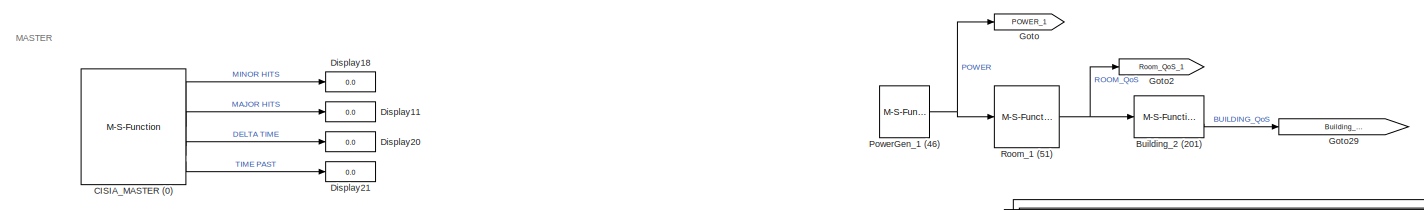
[diagram: root canvas - part 1/30, top left region]
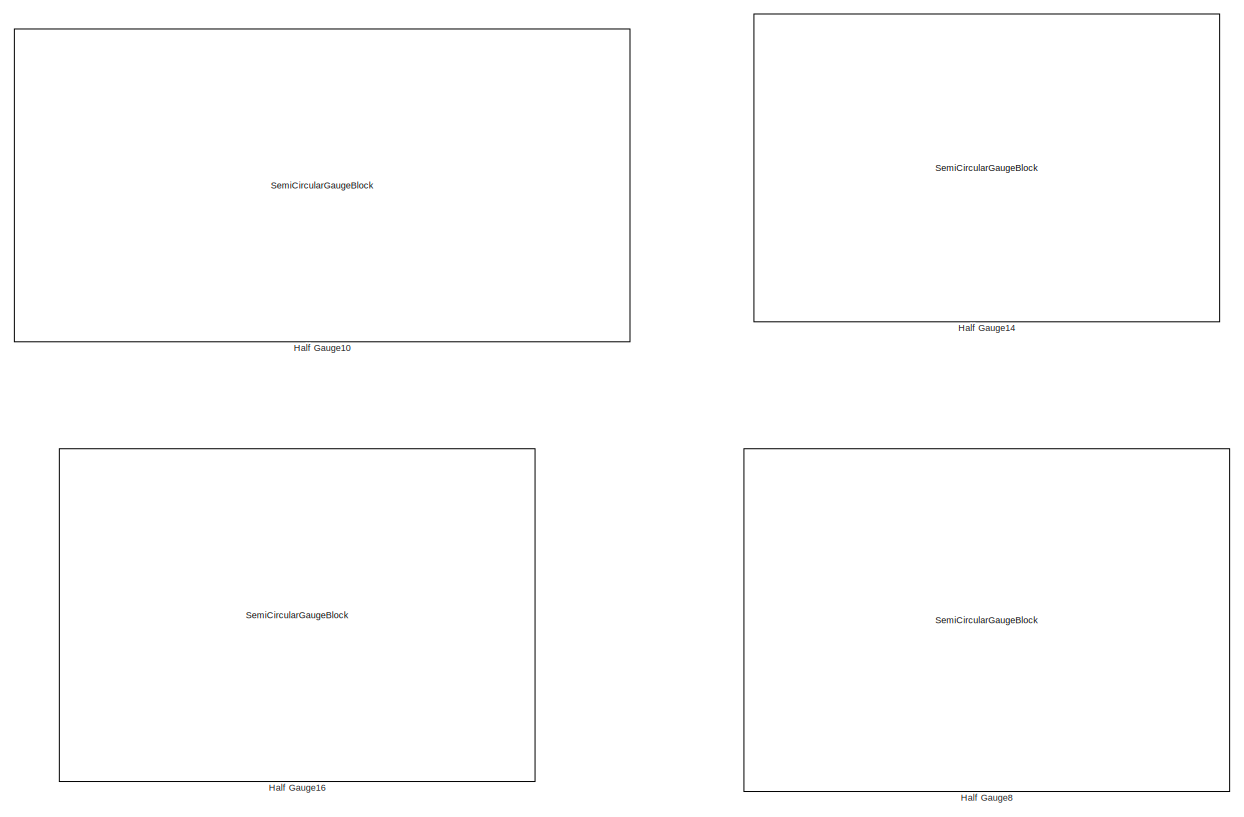
[diagram: root canvas - part 2/30, top left region]
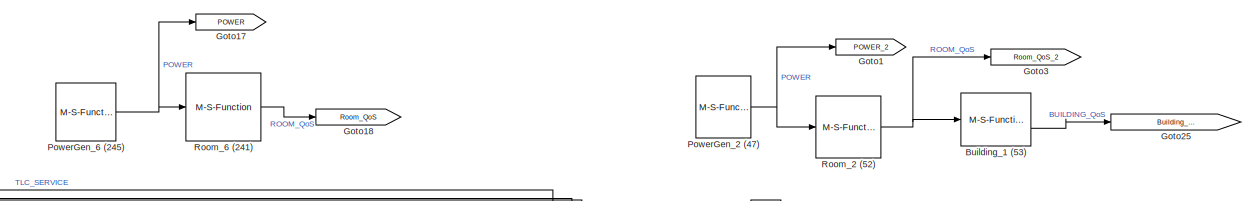
[diagram: root canvas - part 3/30, top center region]
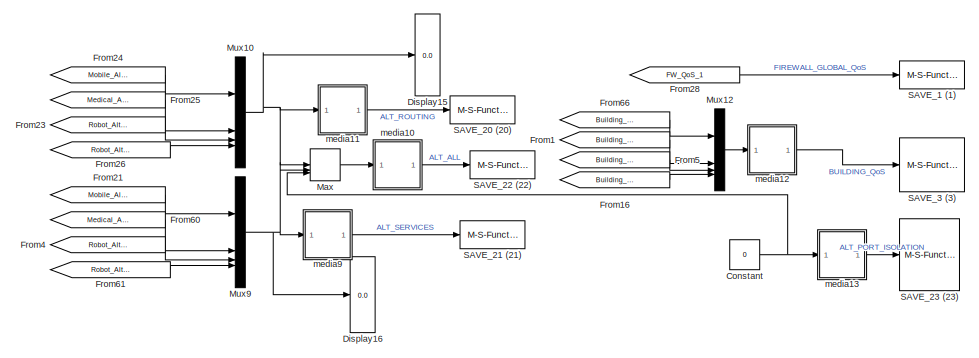
[diagram: root canvas - part 4/30, top center region]
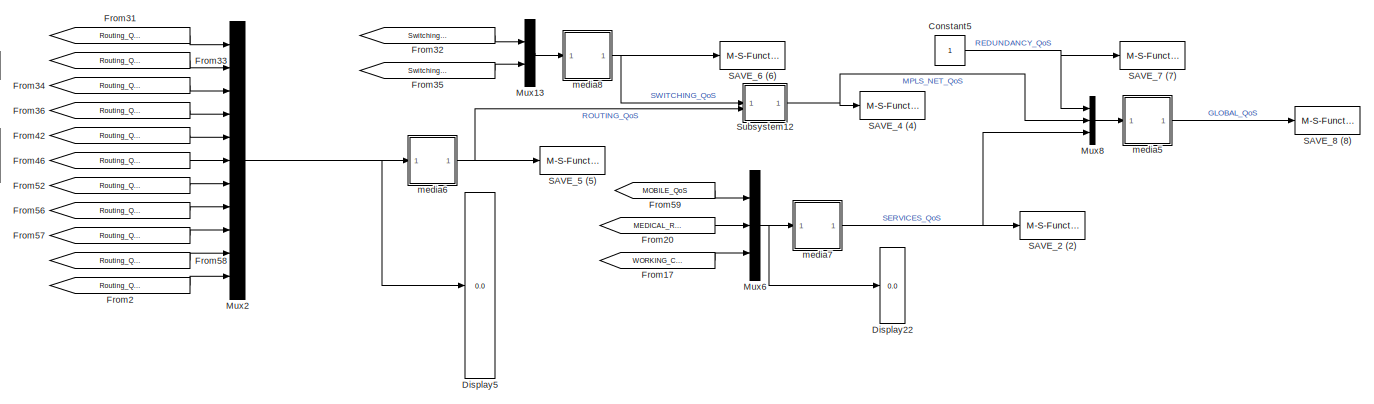
[diagram: root canvas - part 5/30, top right region]
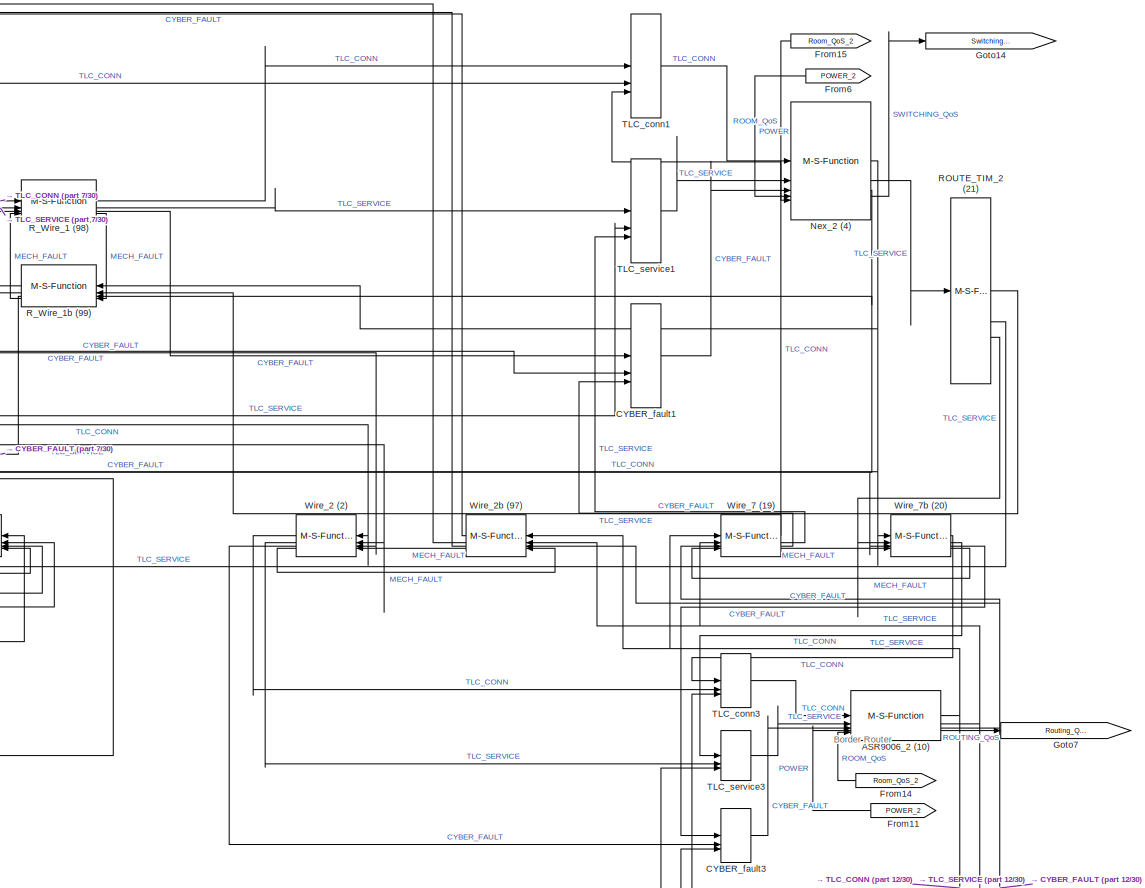
[diagram: root canvas - part 6/30, top center region]
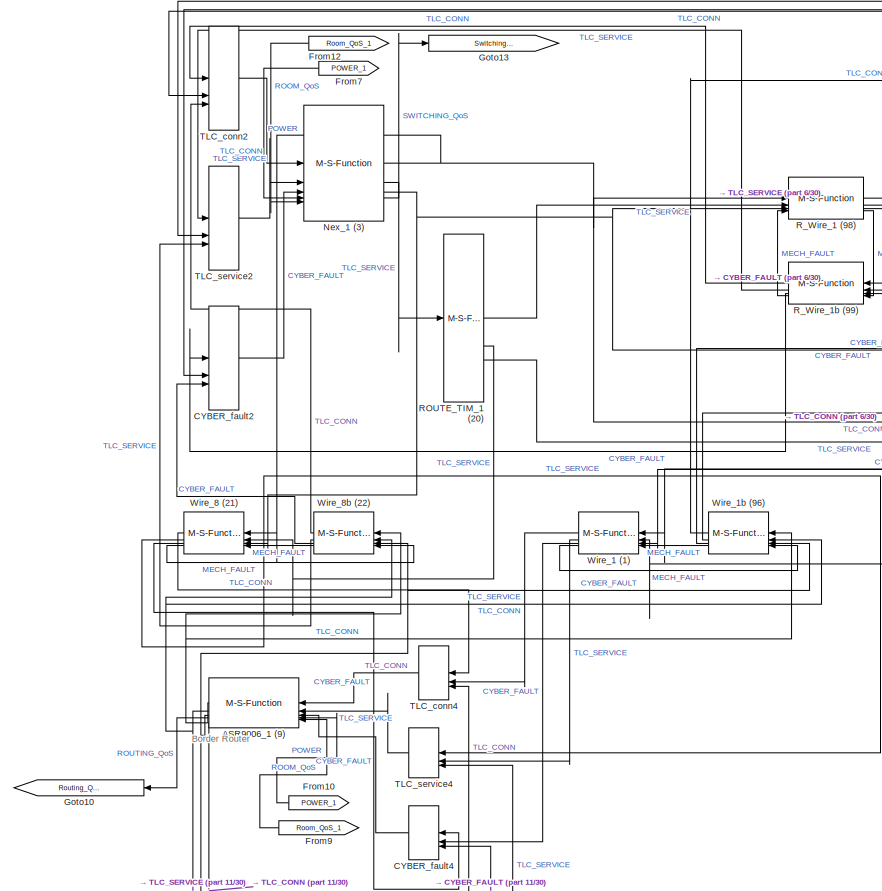
[diagram: root canvas - part 7/30, top center region]
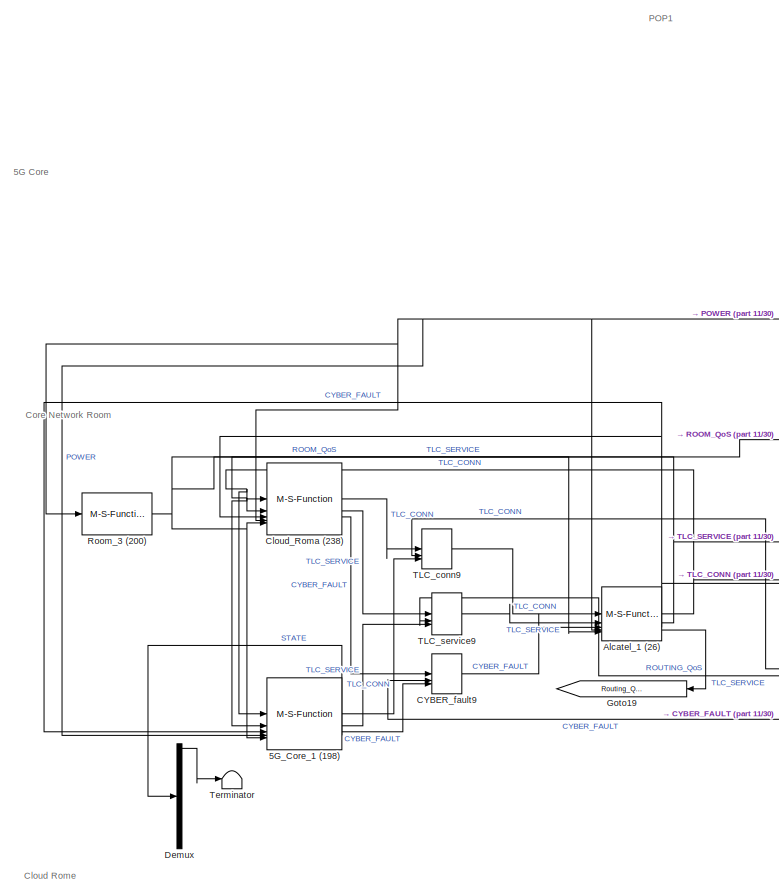
[diagram: root canvas - part 8/30, top left region]
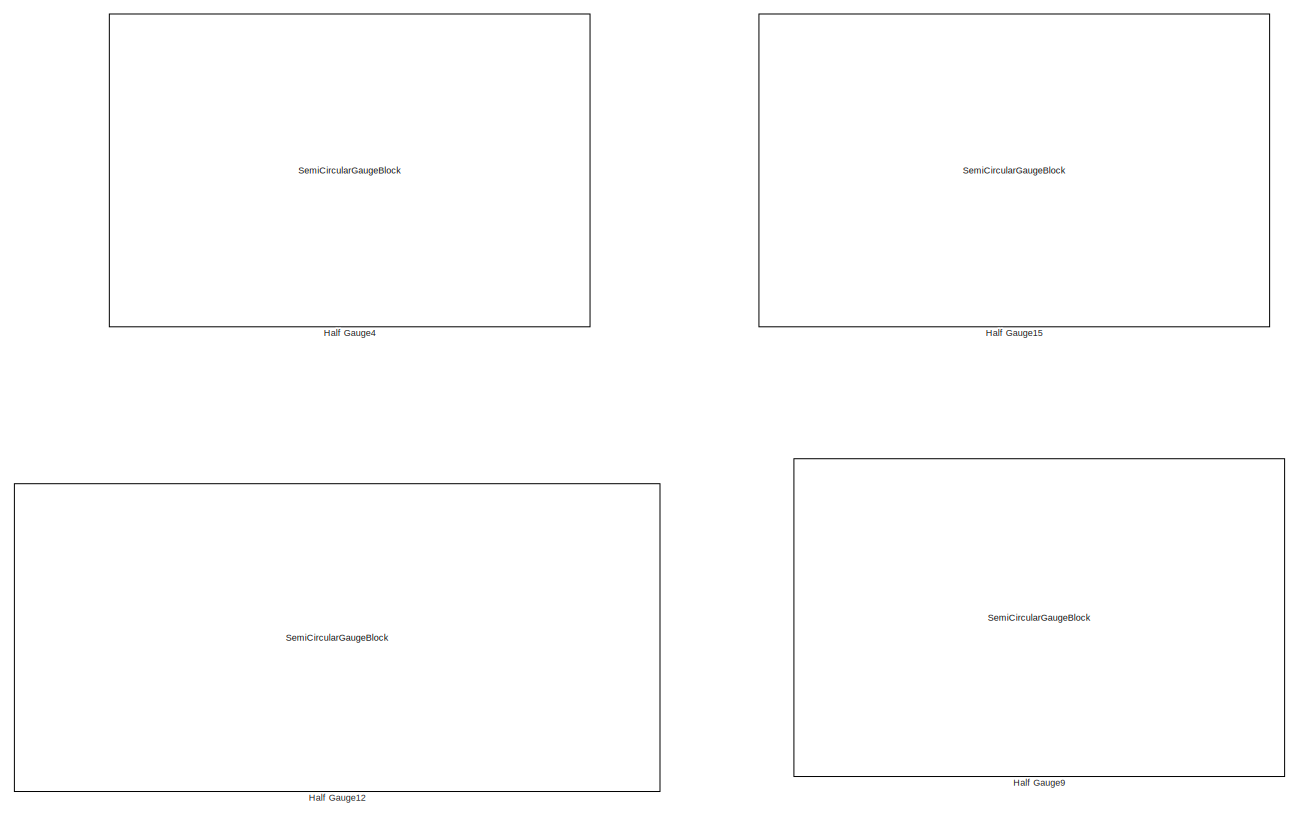
[diagram: root canvas - part 9/30, top left region]
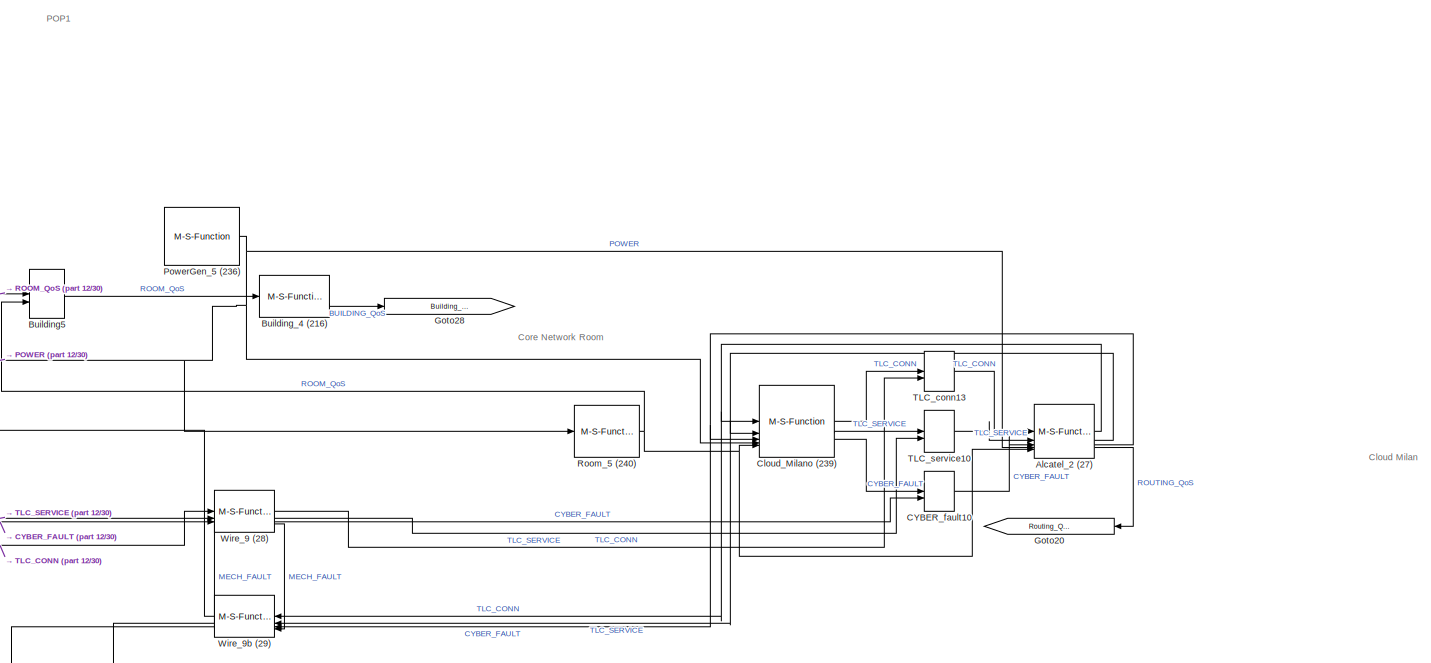
[diagram: root canvas - part 10/30, top center region]
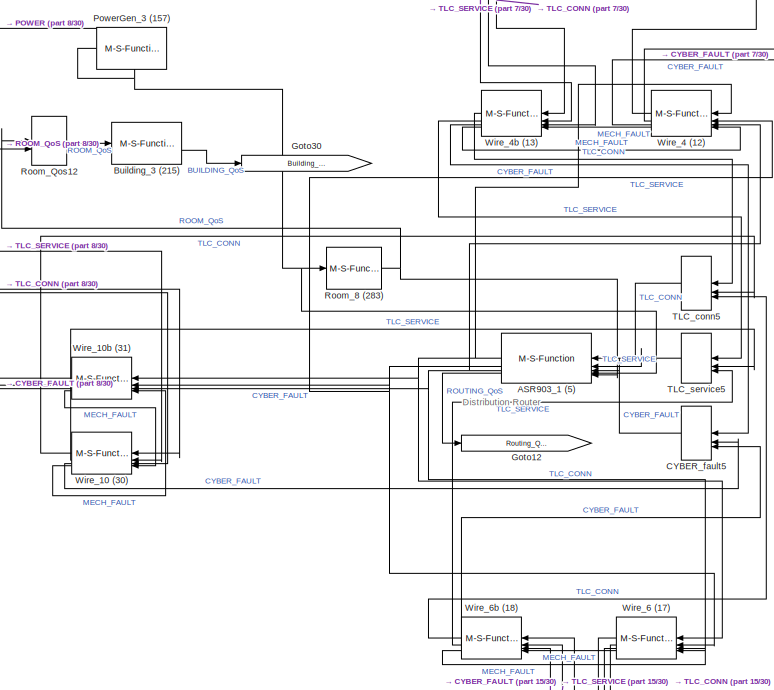
[diagram: root canvas - part 11/30, top left region]
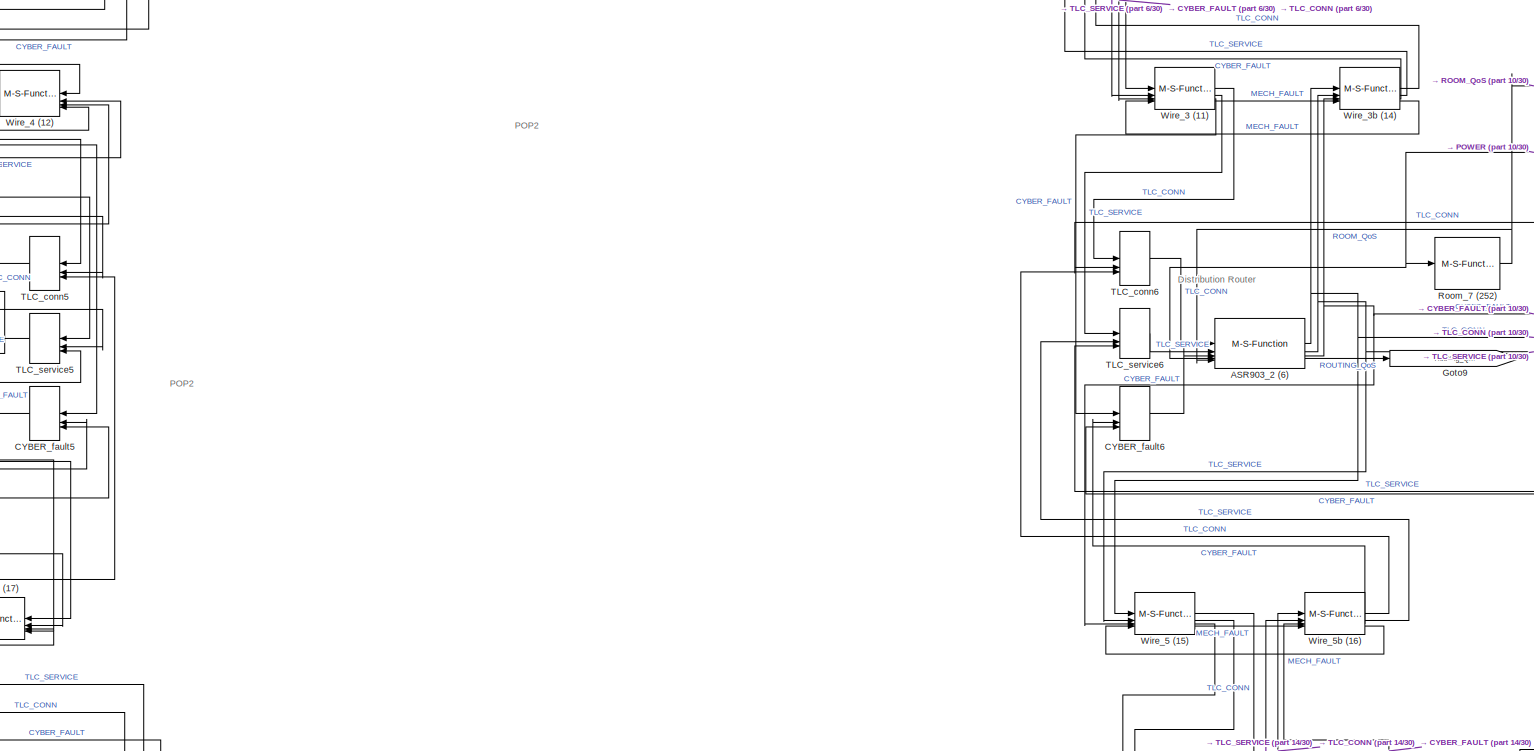
[diagram: root canvas - part 12/30, central region]
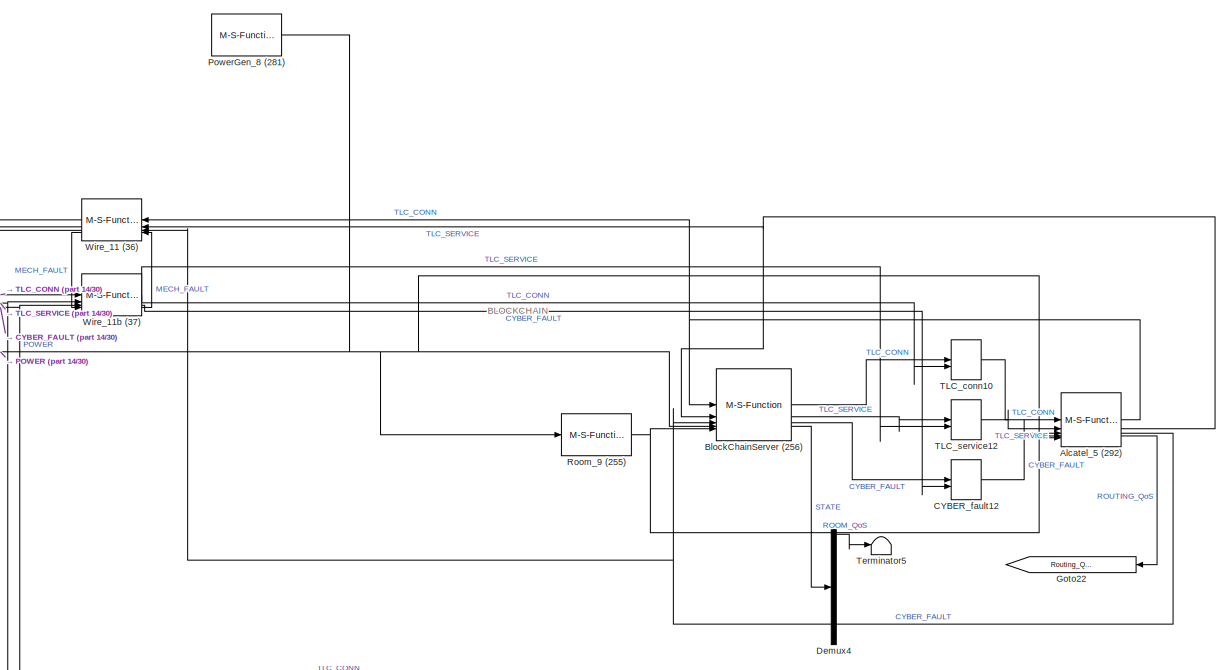
[diagram: root canvas - part 13/30, central region]
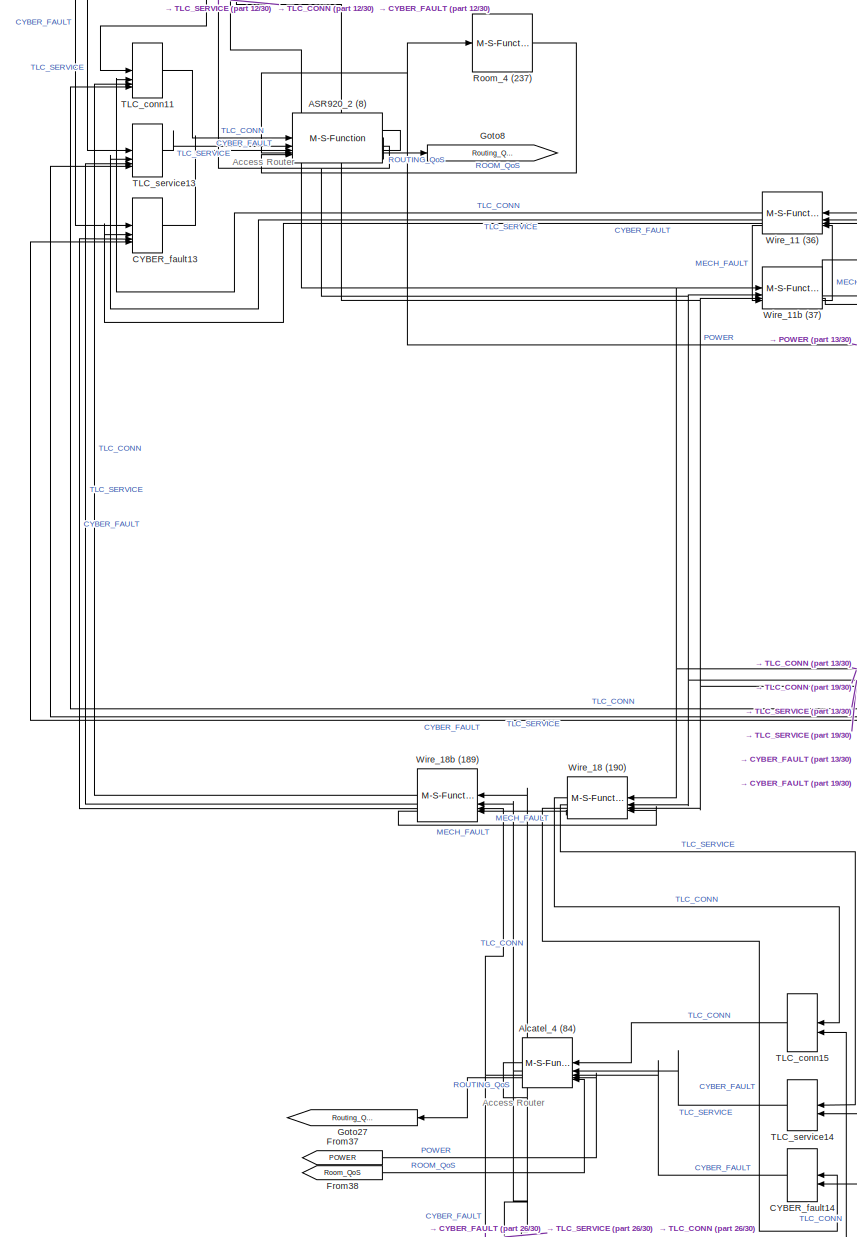
[diagram: root canvas - part 14/30, central region]
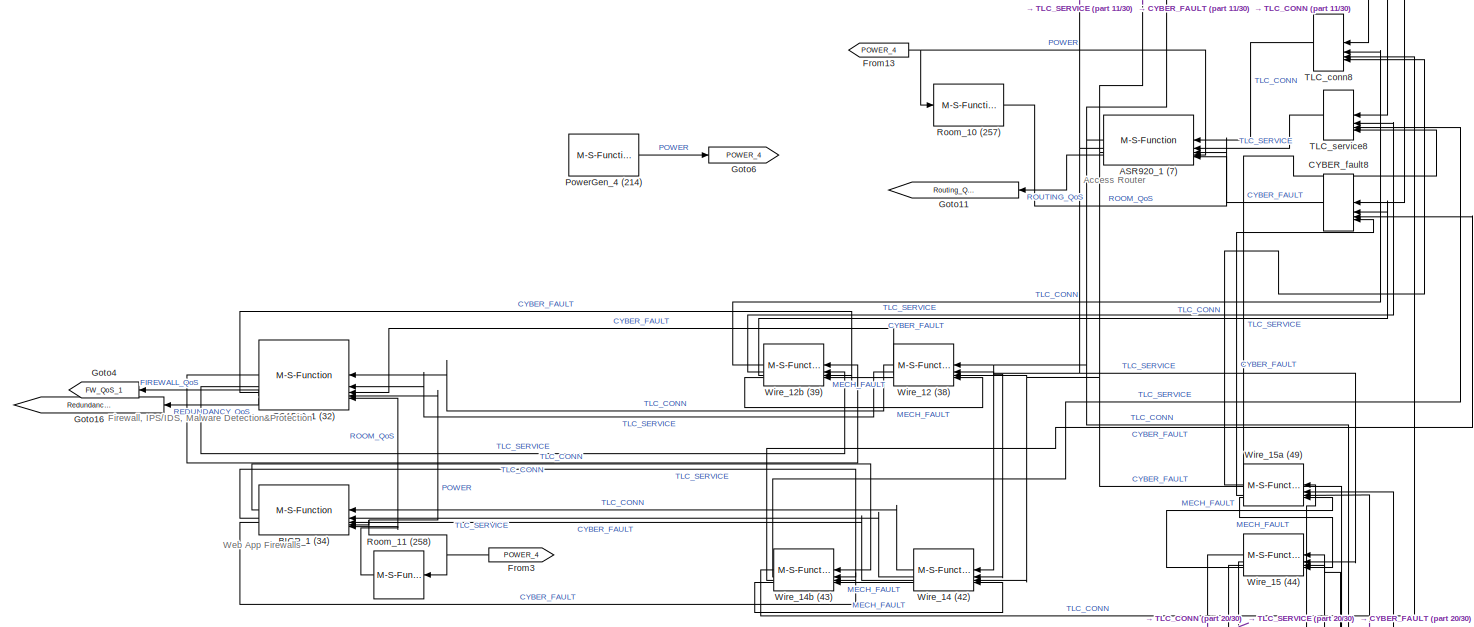
[diagram: root canvas - part 15/30, middle left region]
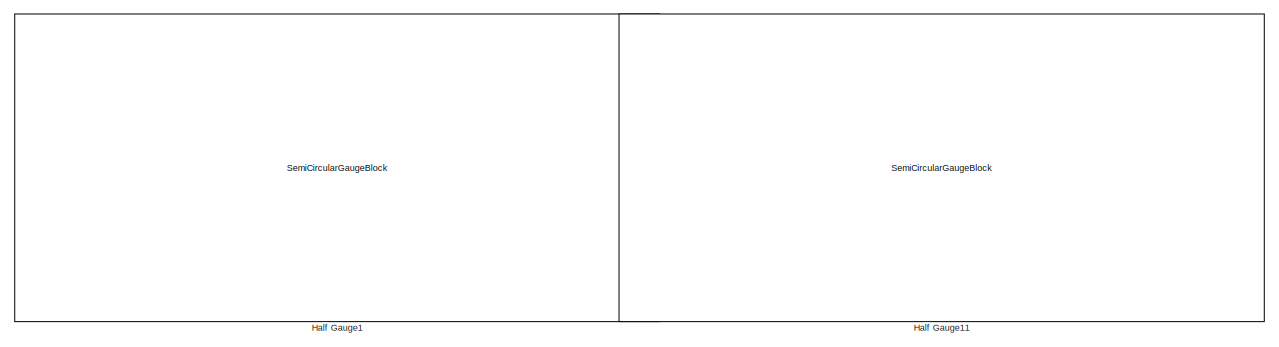
[diagram: root canvas - part 16/30, middle left region]
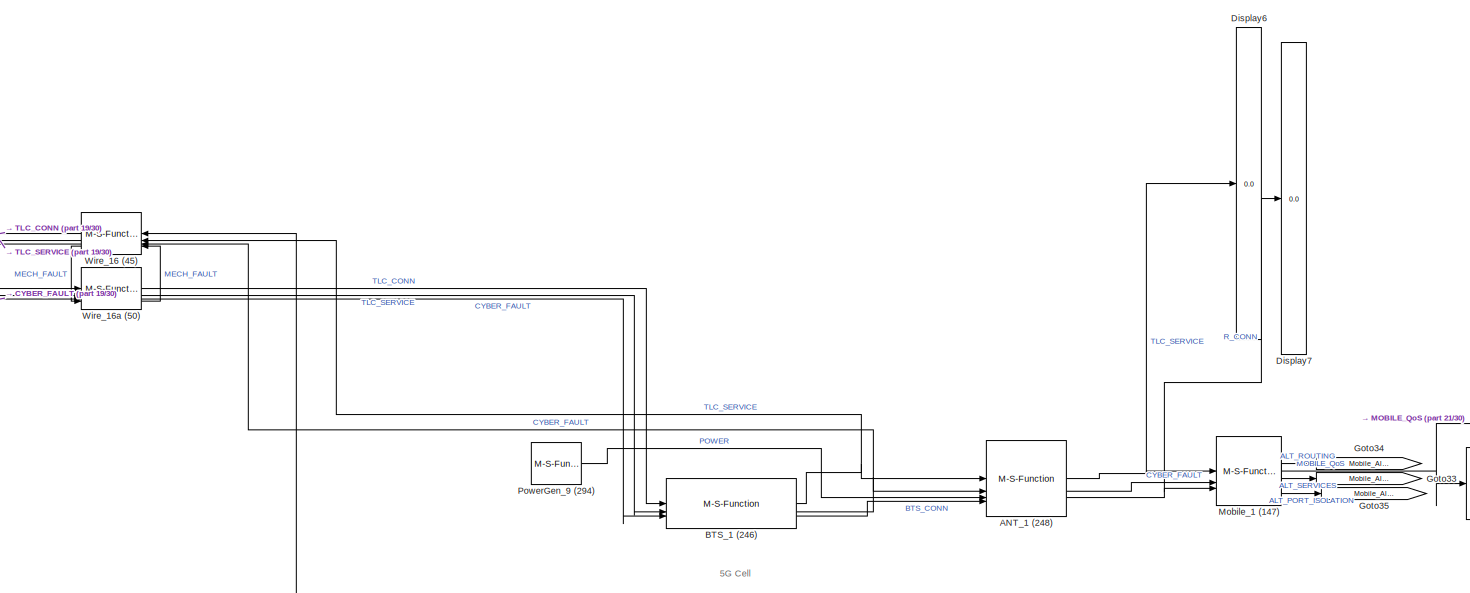
[diagram: root canvas - part 17/30, middle right region]
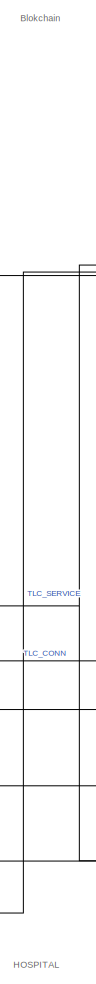
[diagram: root canvas - part 18/30, middle right region]
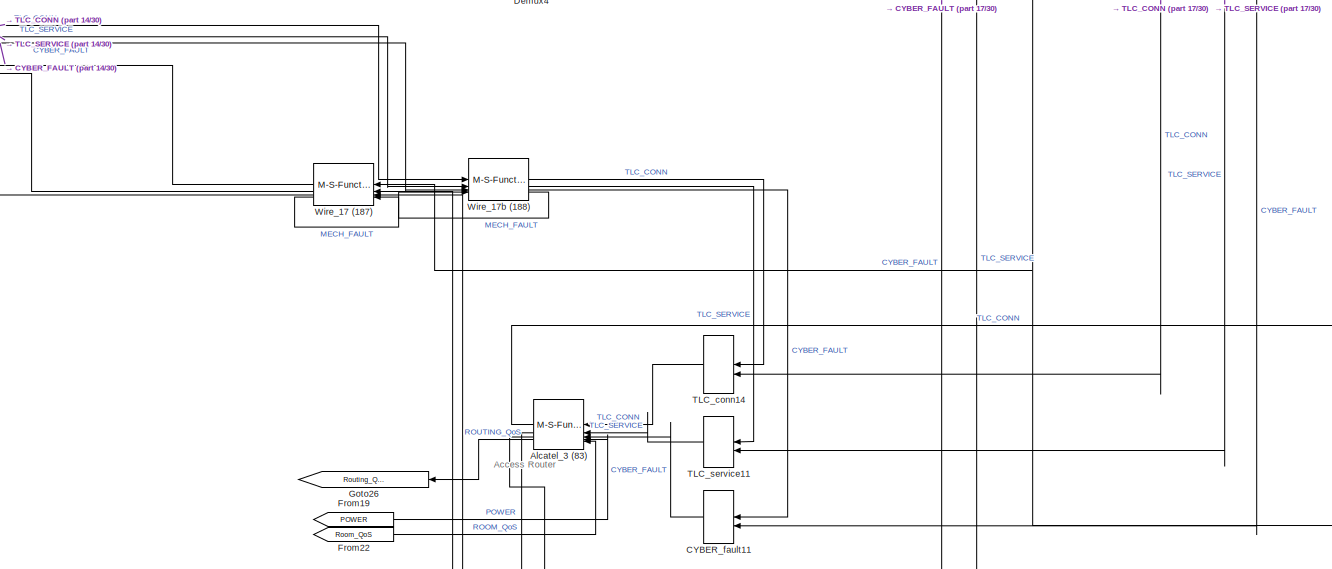
[diagram: root canvas - part 19/30, central region]
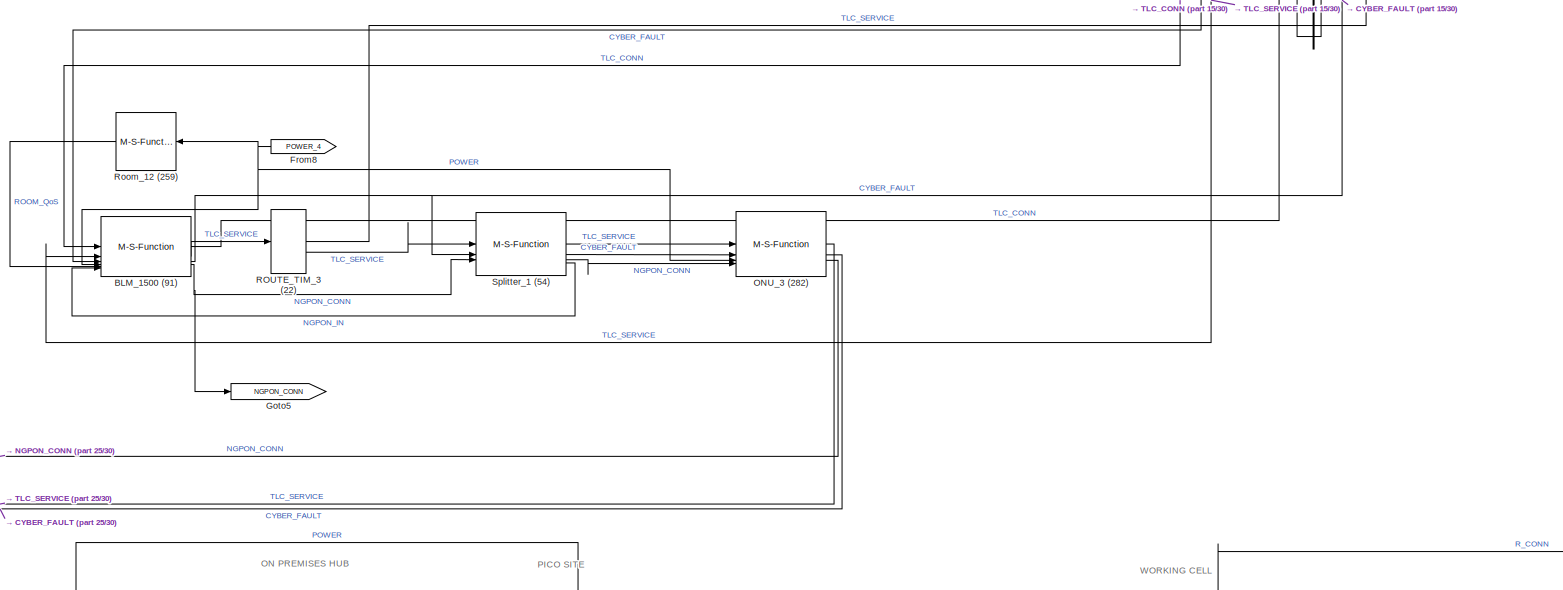
[diagram: root canvas - part 20/30, middle left region]
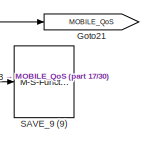
[diagram: root canvas - part 21/30, middle right region]
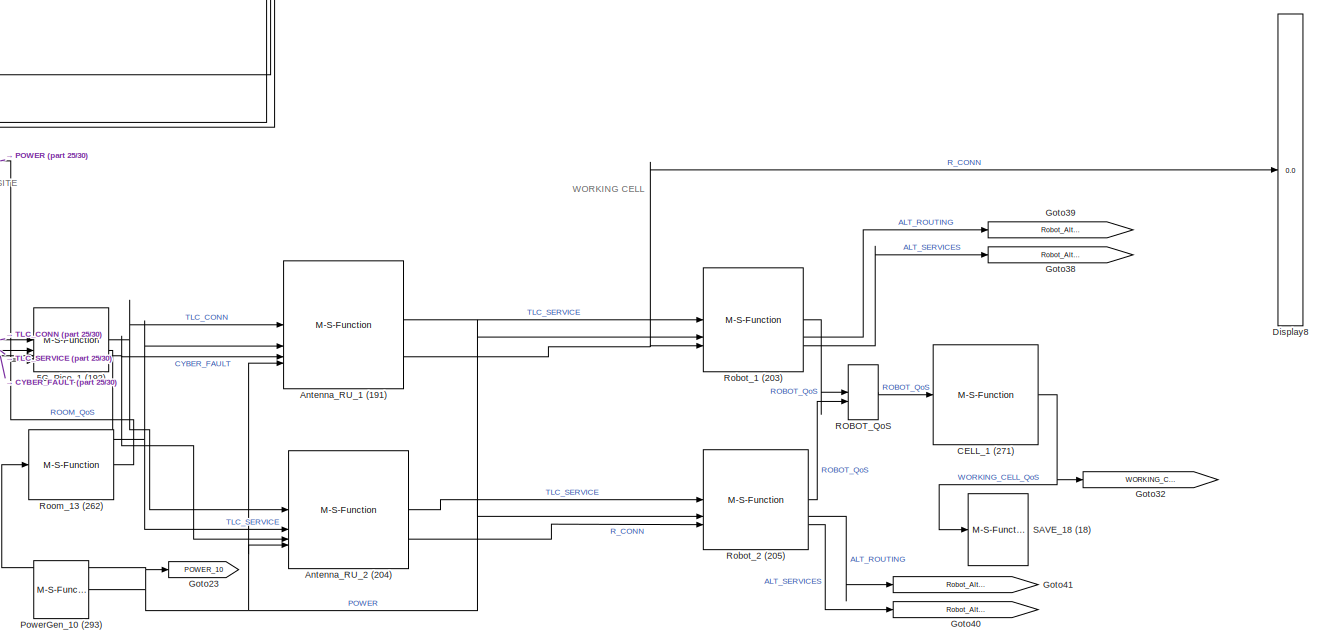
[diagram: root canvas - part 22/30, bottom center region]
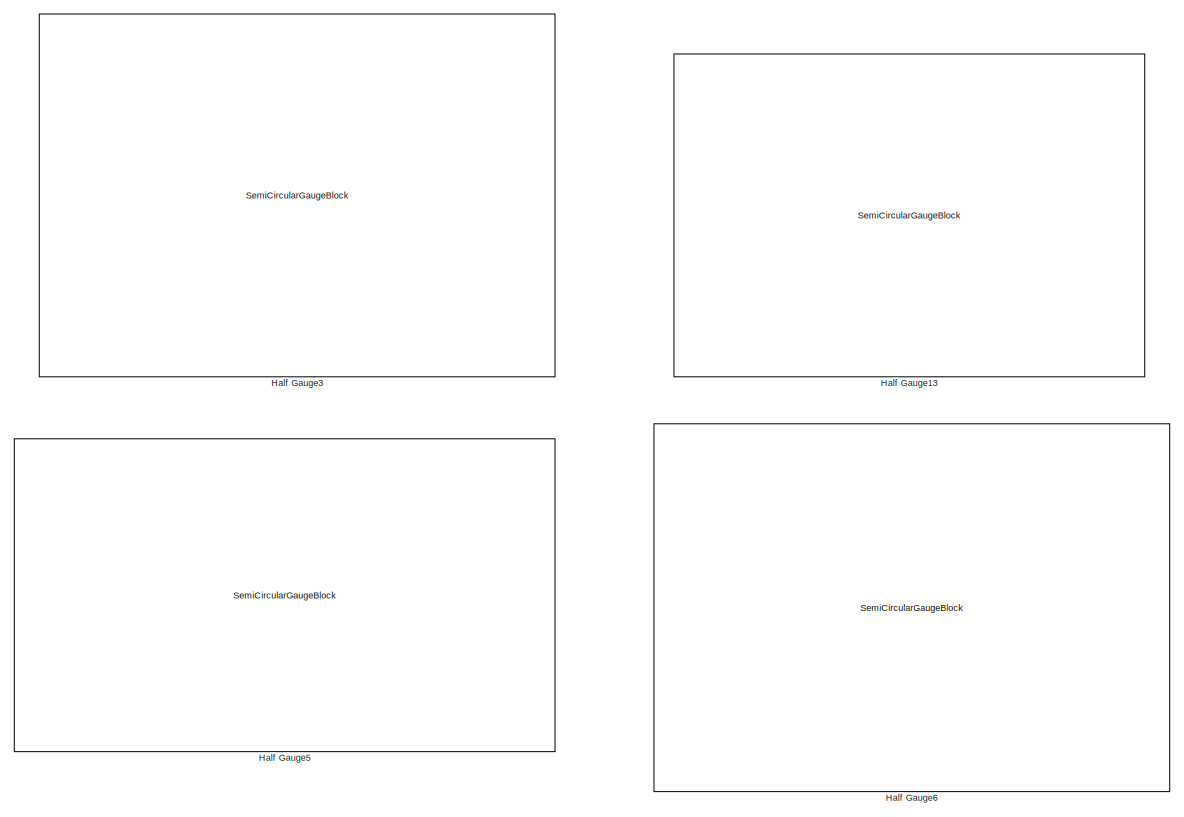
[diagram: root canvas - part 23/30, bottom left region]
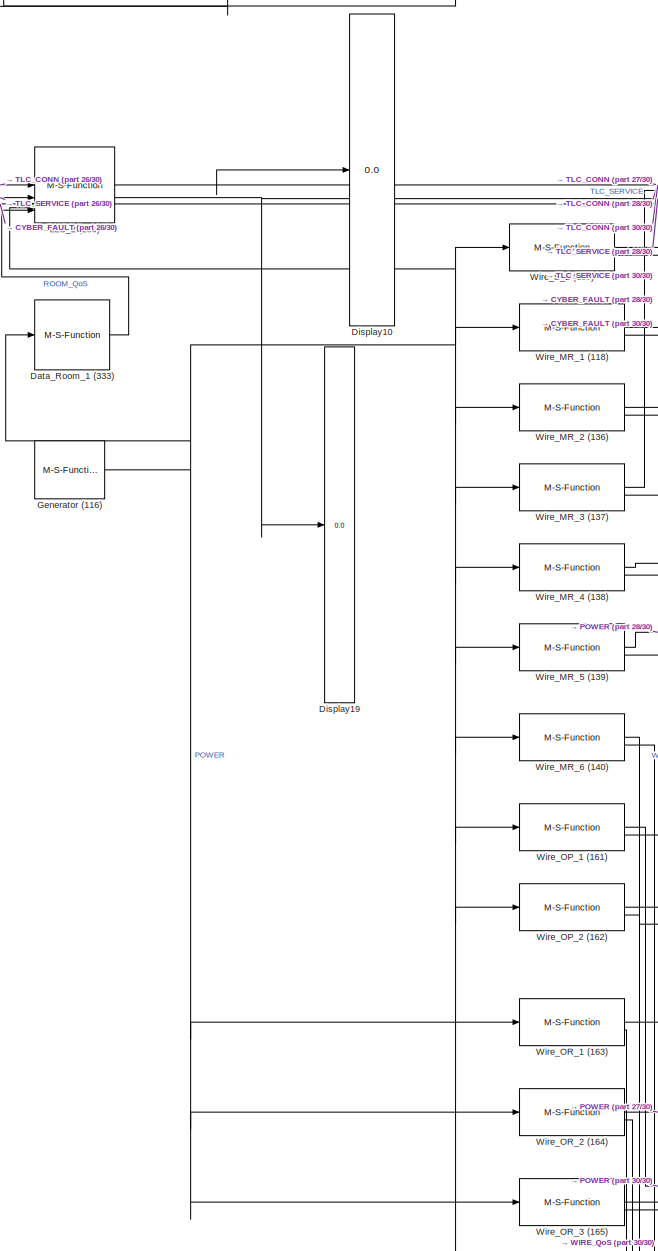
[diagram: root canvas - part 24/30, bottom right region]
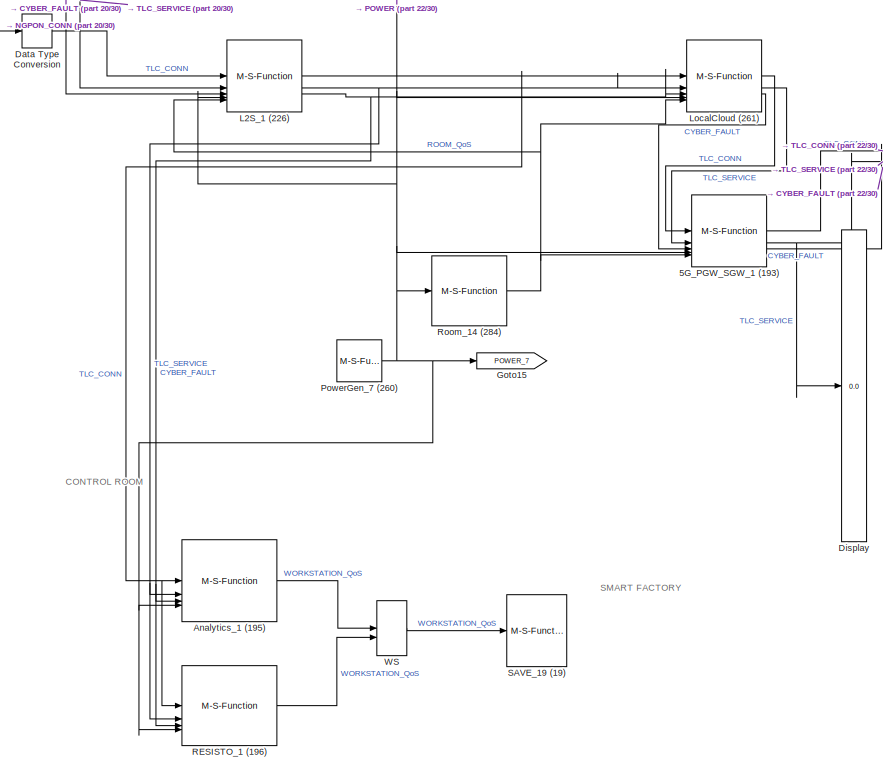
[diagram: root canvas - part 25/30, bottom left region]
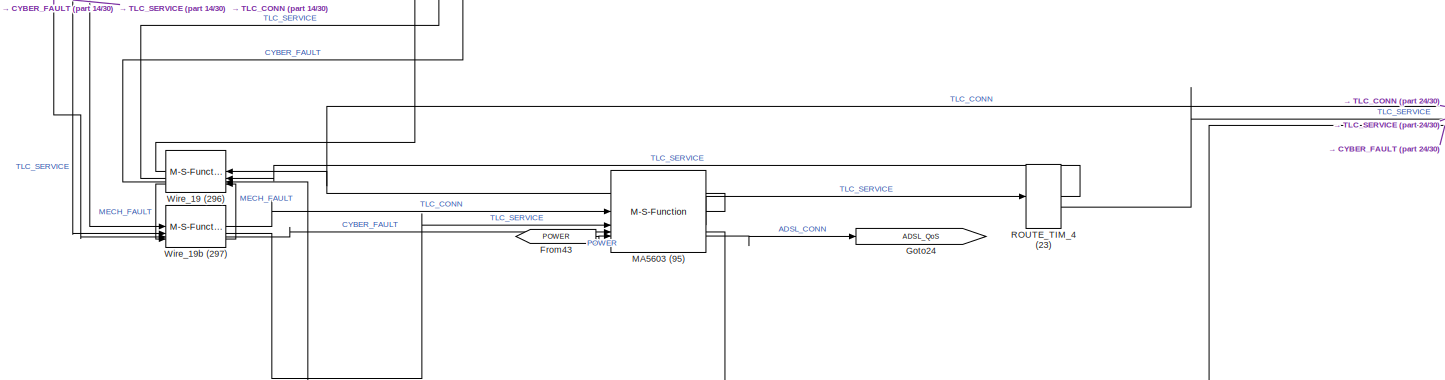
[diagram: root canvas - part 26/30, bottom center region]
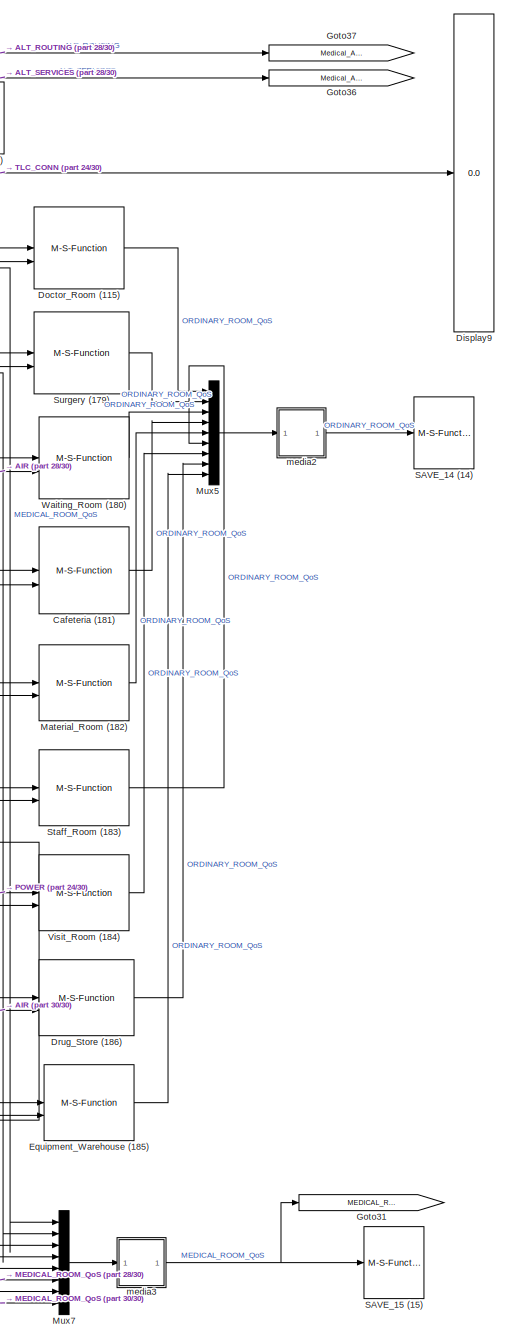
[diagram: root canvas - part 27/30, bottom right region]
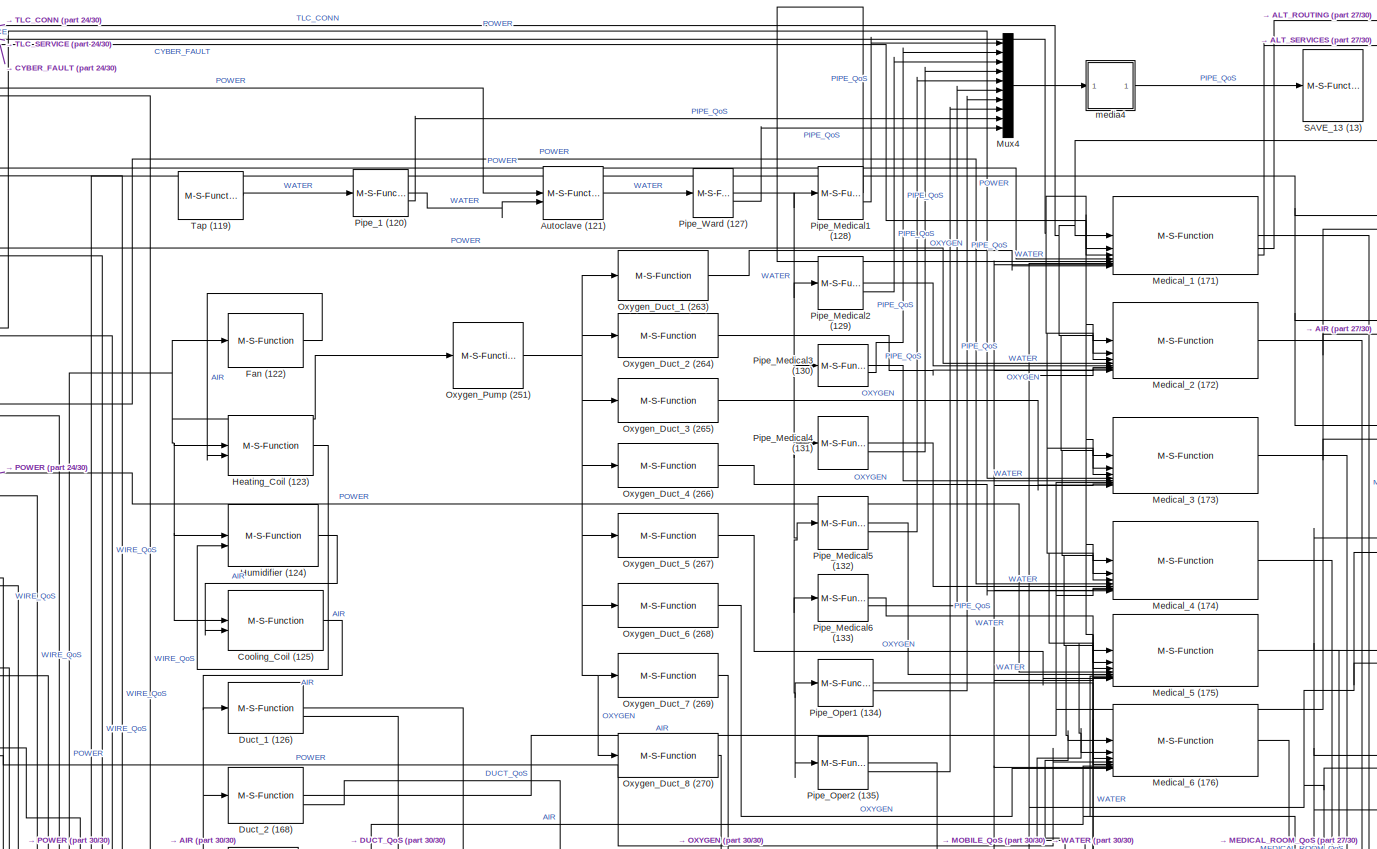
[diagram: root canvas - part 28/30, bottom right region]
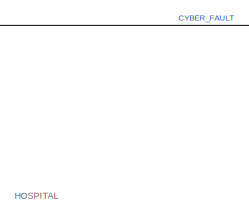
[diagram: root canvas - part 29/30, bottom center region]
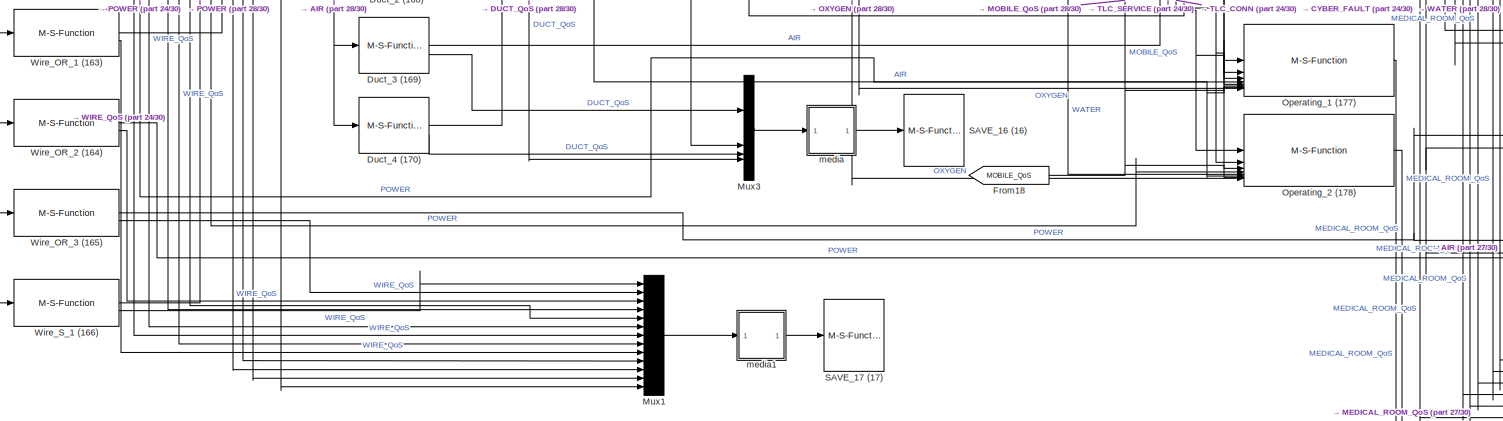
[diagram: root canvas - part 30/30, bottom right region]
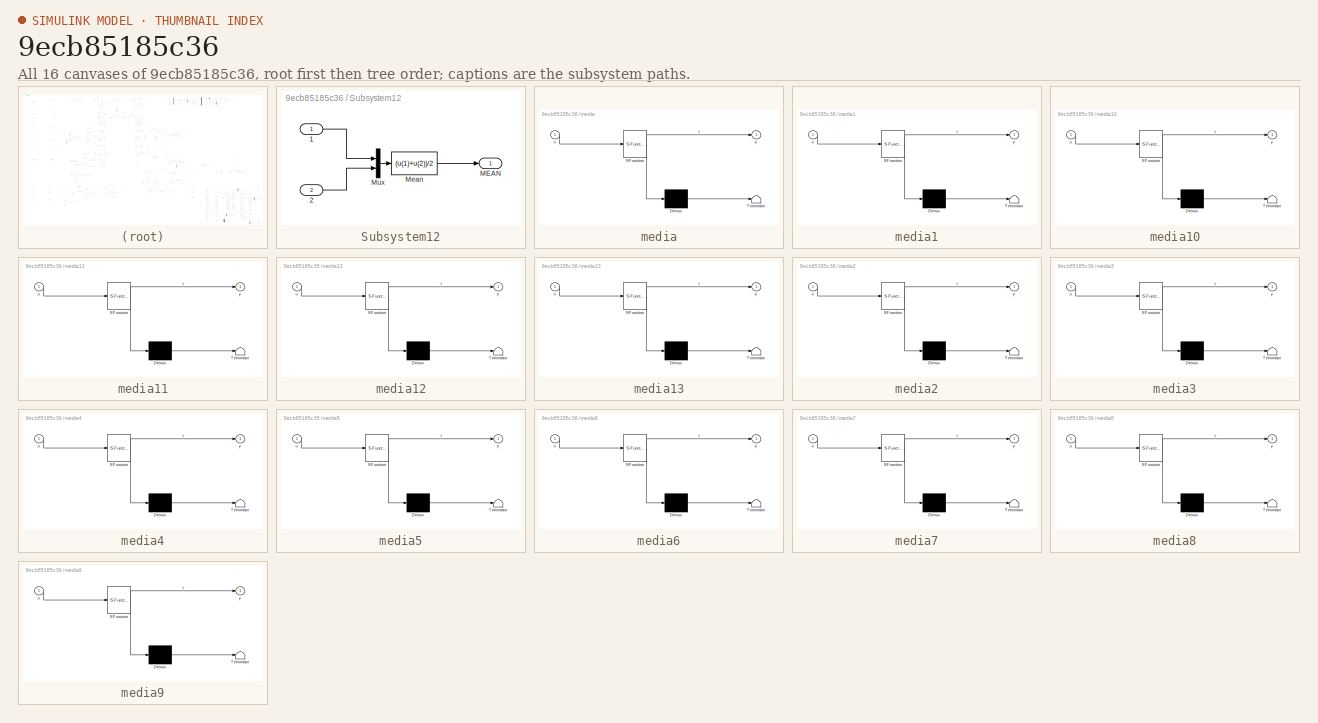
[diagram: thumbnail index - all 16 canvases of the model, root first then tree order]
MODEL slx_9ecb85185c36
KIND model
CONFIG AbsTol = auto
CONFIG EnableMultiTasking = off
CONFIG FixedStep = auto
CONFIG MaxStep = auto
CONFIG MinStep = auto
CONFIG RelTol = 1e-3
CONFIG SampleTimeConstraint = Unconstrained
CONFIG SolverName = VariableStepAuto
CONFIG StartTime = 0.0
CONFIG StopTime = 2
BLOCK [M-S-Function] 5G_Core_1 (198)
  FunctionName = cisia_msfun
  Parameters = Parameter1, Parameter2, Parameter3, resources, Parameter10, codeupdate, step_received, step_computed, dynamic_computed, step_sended, id_entity, id_project, id_type, name_type, color
BLOCK [M-S-Function] 5G_PGW_SGW_1 (193)
  FunctionName = cisia_msfun
  Parameters = Parameter1, Parameter2, Parameter3, resources, Parameter10, codeupdate, step_received, step_computed, dynamic_computed, step_sended, id_entity, id_project, id_type, name_type, color
BLOCK [M-S-Function] 5G_Pico_1 (192)
  FunctionName = cisia_msfun
  Parameters = Parameter1, Parameter2, Parameter3, resources, Parameter10, codeupdate, step_received, step_computed, dynamic_computed, step_sended, id_entity, id_project, id_type, name_type, color
BLOCK [M-S-Function] ANT_1 (248)
  FunctionName = cisia_msfun
  Parameters = Parameter1, Parameter2, Parameter3, resources, Parameter10, codeupdate, step_received, step_computed, dynamic_computed, step_sended, id_entity, id_project, id_type, name_type, color
BLOCK [M-S-Function] ASR9006_1 (9)
  FunctionName = cisia_msfun
  NameLocation = top
  Parameters = Parameter1, Parameter2, Parameter3, resources, Parameter10, codeupdate, step_received, step_computed, dynamic_computed, step_sended, id_entity, id_project, id_type, name_type, color
BLOCK [M-S-Function] ASR9006_2 (10)
  FunctionName = cisia_msfun
  NameLocation = top
  Parameters = Parameter1, Parameter2, Parameter3, resources, Parameter10, codeupdate, step_received, step_computed, dynamic_computed, step_sended, id_entity, id_project, id_type, name_type, color
BLOCK [M-S-Function] ASR903_1 (5)
  FunctionName = cisia_msfun
  NameLocation = top
  Parameters = Parameter1, Parameter2, Parameter3, resources, Parameter10, codeupdate, step_received, step_computed, dynamic_computed, step_sended, id_entity, id_project, id_type, name_type, color
BLOCK [M-S-Function] ASR903_2 (6)
  FunctionName = cisia_msfun
  NameLocation = top
  Parameters = Parameter1, Parameter2, Parameter3, resources, Parameter10, codeupdate, step_received, step_computed, dynamic_computed, step_sended, id_entity, id_project, id_type, name_type, color
BLOCK [M-S-Function] ASR920_1 (7)
  FunctionName = cisia_msfun
  NameLocation = top
  Parameters = Parameter1, Parameter2, Parameter3, resources, Parameter10, codeupdate, step_received, step_computed, dynamic_computed, step_sended, id_entity, id_project, id_type, name_type, color
BLOCK [M-S-Function] ASR920_2 (8)
  FunctionName = cisia_msfun
  NameLocation = top
  Parameters = Parameter1, Parameter2, Parameter3, resources, Parameter10, codeupdate, step_received, step_computed, dynamic_computed, step_sended, id_entity, id_project, id_type, name_type, color
BLOCK [M-S-Function] Alcatel_1 (26)
  FunctionName = cisia_msfun
  Parameters = Parameter1, Parameter2, Parameter3, resources, Parameter10, codeupdate, step_received, step_computed, dynamic_computed, step_sended, id_entity, id_project, id_type, name_type, color
BLOCK [M-S-Function] Alcatel_2 (27)
  FunctionName = cisia_msfun
  Parameters = Parameter1, Parameter2, Parameter3, resources, Parameter10, codeupdate, step_received, step_computed, dynamic_computed, step_sended, id_entity, id_project, id_type, name_type, color
BLOCK [M-S-Function] Alcatel_3 (83)
  FunctionName = cisia_msfun
  NameLocation = top
  Parameters = Parameter1, Parameter2, Parameter3, resources, Parameter10, codeupdate, step_received, step_computed, dynamic_computed, step_sended, id_entity, id_project, id_type, name_type, color
BLOCK [M-S-Function] Alcatel_4 (84)
  FunctionName = cisia_msfun
  NameLocation = top
  Parameters = Parameter1, Parameter2, Parameter3, resources, Parameter10, codeupdate, step_received, step_computed, dynamic_computed, step_sended, id_entity, id_project, id_type, name_type, color
BLOCK [M-S-Function] Alcatel_5 (292)
  FunctionName = cisia_msfun
  Parameters = Parameter1, Parameter2, Parameter3, resources, Parameter10, codeupdate, step_received, step_computed, dynamic_computed, step_sended, id_entity, id_project, id_type, name_type, color
BLOCK [M-S-Function] Analytics_1 (195)
  FunctionName = cisia_msfun
  Parameters = Parameter1, Parameter2, Parameter3, resources, Parameter10, codeupdate, step_received, step_computed, dynamic_computed, step_sended, id_entity, id_project, id_type, name_type, color
BLOCK [M-S-Function] Antenna_RU_1 (191)
  FunctionName = cisia_msfun
  Parameters = Parameter1, Parameter2, Parameter3, resources, Parameter10, codeupdate, step_received, step_computed, dynamic_computed, step_sended, id_entity, id_project, id_type, name_type, color
BLOCK [M-S-Function] Antenna_RU_2 (204)
  FunctionName = cisia_msfun
  Parameters = Parameter1, Parameter2, Parameter3, resources, Parameter10, codeupdate, step_received, step_computed, dynamic_computed, step_sended, id_entity, id_project, id_type, name_type, color
BLOCK [M-S-Function] Autoclave (121)
  FunctionName = cisia_msfun
  Parameters = Parameter1, Parameter2, Parameter3, resources, Parameter10, codeupdate, step_received, step_computed, dynamic_computed, step_sended, id_entity, id_project, id_type, name_type, color
BLOCK [M-S-Function] BIGP_1 (34)
  FunctionName = cisia_msfun
  NameLocation = top
  Parameters = Parameter1, Parameter2, Parameter3, resources, Parameter10, codeupdate, step_received, step_computed, dynamic_computed, step_sended, id_entity, id_project, id_type, name_type, color
BLOCK [M-S-Function] BLM_1500 (91)
  FunctionName = cisia_msfun
  Parameters = Parameter1, Parameter2, Parameter3, resources, Parameter10, codeupdate, step_received, step_computed, dynamic_computed, step_sended, id_entity, id_project, id_type, name_type, color
BLOCK [M-S-Function] BTS_1 (246)
  FunctionName = cisia_msfun
  Parameters = Parameter1, Parameter2, Parameter3, resources, Parameter10, codeupdate, step_received, step_computed, dynamic_computed, step_sended, id_entity, id_project, id_type, name_type, color
BLOCK [M-S-Function] BlockChainServer (256)
  FunctionName = cisia_msfun
  Parameters = Parameter1, Parameter2, Parameter3, resources, Parameter10, codeupdate, step_received, step_computed, dynamic_computed, step_sended, id_entity, id_project, id_type, name_type, color
BLOCK [MinMax] Building5
  Inputs = 2
BLOCK [M-S-Function] Building_1 (53)
  FunctionName = cisia_msfun
  Parameters = Parameter1, Parameter2, Parameter3, resources, Parameter10, codeupdate, step_received, step_computed, dynamic_computed, step_sended, id_entity, id_project, id_type, name_type, color
BLOCK [M-S-Function] Building_2 (201)
  FunctionName = cisia_msfun
  Parameters = Parameter1, Parameter2, Parameter3, resources, Parameter10, codeupdate, step_received, step_computed, dynamic_computed, step_sended, id_entity, id_project, id_type, name_type, color
BLOCK [M-S-Function] Building_3 (215)
  FunctionName = cisia_msfun
  Parameters = Parameter1, Parameter2, Parameter3, resources, Parameter10, codeupdate, step_received, step_computed, dynamic_computed, step_sended, id_entity, id_project, id_type, name_type, color
BLOCK [M-S-Function] Building_4 (216)
  FunctionName = cisia_msfun
  Parameters = Parameter1, Parameter2, Parameter3, resources, Parameter10, codeupdate, step_received, step_computed, dynamic_computed, step_sended, id_entity, id_project, id_type, name_type, color
BLOCK [M-S-Function] CELL_1 (271)
  FunctionName = cisia_msfun
  Parameters = Parameter1, Parameter2, Parameter3, resources, Parameter10, codeupdate, step_received, step_computed, dynamic_computed, step_sended, id_entity, id_project, id_type, name_type, color
BLOCK [M-S-Function] CISIA_MASTER (0)
  FunctionName = cisia_msfun
  Parameters = Parameter1, Parameter2, Parameter3, resources, Parameter4, Parameter5, Parameter6, Parameter7, Parameter8, Parameter9,Parameter11,Parameter12
BLOCK [MinMax] CYBER_fault1
  Function = max
  Inputs = 3
BLOCK [MinMax] CYBER_fault10
  Function = max
  Inputs = 2
BLOCK [MinMax] CYBER_fault11
  Function = max
  Inputs = 2
  NameLocation = top
BLOCK [MinMax] CYBER_fault12
  Function = max
  Inputs = 2
BLOCK [MinMax] CYBER_fault13
  Function = max
  Inputs = 4
BLOCK [MinMax] CYBER_fault14
  Function = max
  Inputs = 2
  NameLocation = top
BLOCK [MinMax] CYBER_fault2
  Function = max
  Inputs = 3
BLOCK [MinMax] CYBER_fault3
  Function = max
  Inputs = 3
BLOCK [MinMax] CYBER_fault4
  Function = max
  Inputs = 3
  NameLocation = top
BLOCK [MinMax] CYBER_fault5
  Function = max
  Inputs = 3
  NameLocation = top
BLOCK [MinMax] CYBER_fault6
  Function = max
  Inputs = 3
BLOCK [MinMax] CYBER_fault8
  Function = max
  Inputs = 4
  NameLocation = top
BLOCK [MinMax] CYBER_fault9
  Function = max
  Inputs = 3
BLOCK [M-S-Function] Cafeteria (181)
  FunctionName = cisia_msfun
  Parameters = Parameter1, Parameter2, Parameter3, resources, Parameter10, codeupdate, step_received, step_computed, dynamic_computed, step_sended, id_entity, id_project, id_type, name_type, color
BLOCK [M-S-Function] Cloud_Milano (239)
  FunctionName = cisia_msfun
  Parameters = Parameter1, Parameter2, Parameter3, resources, Parameter10, codeupdate, step_received, step_computed, dynamic_computed, step_sended, id_entity, id_project, id_type, name_type, color
BLOCK [M-S-Function] Cloud_Roma (238)
  FunctionName = cisia_msfun
  Parameters = Parameter1, Parameter2, Parameter3, resources, Parameter10, codeupdate, step_received, step_computed, dynamic_computed, step_sended, id_entity, id_project, id_type, name_type, color
BLOCK [Constant] Constant
  Value = 0
BLOCK [Constant] Constant5
BLOCK [M-S-Function] Cooling_Coil (125)
  FunctionName = cisia_msfun
  Parameters = Parameter1, Parameter2, Parameter3, resources, Parameter10, codeupdate, step_received, step_computed, dynamic_computed, step_sended, id_entity, id_project, id_type, name_type, color
BLOCK [DataTypeConversion] Data Type Conversion
  OutDataTypeStr = double
  RndMeth = Floor
  SaturateOnIntegerOverflow = off
BLOCK [M-S-Function] Data_Room_1 (333)
  FunctionName = cisia_msfun
  Parameters = Parameter1, Parameter2, Parameter3, resources, Parameter10, codeupdate, step_received, step_computed, dynamic_computed, step_sended, id_entity, id_project, id_type, name_type, color
BLOCK [Demux] Demux
  Outputs = 22
BLOCK [Demux] Demux4
  Outputs = 24
BLOCK [Display] Display
  Decimation = 1
BLOCK [Display] Display10
  Decimation = 1
BLOCK [Display] Display11
  Decimation = 1
BLOCK [Display] Display15
  Decimation = 1
BLOCK [Display] Display16
  Decimation = 1
BLOCK [Display] Display18
  Decimation = 1
BLOCK [Display] Display19
  Decimation = 1
BLOCK [Display] Display20
  Decimation = 1
BLOCK [Display] Display21
  Decimation = 1
BLOCK [Display] Display22
  Decimation = 1
BLOCK [Display] Display5
  Decimation = 1
BLOCK [Display] Display6
  Decimation = 1
BLOCK [Display] Display7
  Decimation = 1
BLOCK [Display] Display8
  Decimation = 1
BLOCK [Display] Display9
  Decimation = 1
BLOCK [M-S-Function] Doctor_Room (115)
  FunctionName = cisia_msfun
  Parameters = Parameter1, Parameter2, Parameter3, resources, Parameter10, codeupdate, step_received, step_computed, dynamic_computed, step_sended, id_entity, id_project, id_type, name_type, color
BLOCK [M-S-Function] Drug_Store (186)
  FunctionName = cisia_msfun
  Parameters = Parameter1, Parameter2, Parameter3, resources, Parameter10, codeupdate, step_received, step_computed, dynamic_computed, step_sended, id_entity, id_project, id_type, name_type, color
BLOCK [M-S-Function] Duct_1 (126)
  FunctionName = cisia_msfun
  Parameters = Parameter1, Parameter2, Parameter3, resources, Parameter10, codeupdate, step_received, step_computed, dynamic_computed, step_sended, id_entity, id_project, id_type, name_type, color
BLOCK [M-S-Function] Duct_2 (168)
  FunctionName = cisia_msfun
  Parameters = Parameter1, Parameter2, Parameter3, resources, Parameter10, codeupdate, step_received, step_computed, dynamic_computed, step_sended, id_entity, id_project, id_type, name_type, color
BLOCK [M-S-Function] Duct_3 (169)
  FunctionName = cisia_msfun
  Parameters = Parameter1, Parameter2, Parameter3, resources, Parameter10, codeupdate, step_received, step_computed, dynamic_computed, step_sended, id_entity, id_project, id_type, name_type, color
BLOCK [M-S-Function] Duct_4 (170)
  FunctionName = cisia_msfun
  Parameters = Parameter1, Parameter2, Parameter3, resources, Parameter10, codeupdate, step_received, step_computed, dynamic_computed, step_sended, id_entity, id_project, id_type, name_type, color
BLOCK [M-S-Function] Equipment_Warehouse (185)
  FunctionName = cisia_msfun
  Parameters = Parameter1, Parameter2, Parameter3, resources, Parameter10, codeupdate, step_received, step_computed, dynamic_computed, step_sended, id_entity, id_project, id_type, name_type, color
BLOCK [M-S-Function] FG1500_1 (32)
  FunctionName = cisia_msfun
  NameLocation = top
  Parameters = Parameter1, Parameter2, Parameter3, resources, Parameter10, codeupdate, step_received, step_computed, dynamic_computed, step_sended, id_entity, id_project, id_type, name_type, color
BLOCK [M-S-Function] Fan (122)
  FunctionName = cisia_msfun
  Parameters = Parameter1, Parameter2, Parameter3, resources, Parameter10, codeupdate, step_received, step_computed, dynamic_computed, step_sended, id_entity, id_project, id_type, name_type, color
BLOCK [From] From1
  GotoTag = Building_QoS_2
BLOCK [From] From10
  GotoTag = POWER_1
  NameLocation = top
BLOCK [From] From11
  GotoTag = POWER_2
  NameLocation = top
BLOCK [From] From12
  GotoTag = Room_QoS_1
  NameLocation = top
BLOCK [From] From13
  GotoTag = POWER_4
BLOCK [From] From14
  GotoTag = Room_QoS_2
  NameLocation = top
BLOCK [From] From15
  GotoTag = Room_QoS_2
  NameLocation = top
BLOCK [From] From16
  GotoTag = Building_QoS_4
BLOCK [From] From17
  GotoTag = WORKING_CELL_QoS
BLOCK [From] From18
  GotoTag = MOBILE_QoS
BLOCK [From] From19
  GotoTag = POWER
BLOCK [From] From2
  GotoTag = Routing_QoS_Alcatel_1
BLOCK [From] From20
  GotoTag = MEDICAL_ROOM_QoS
BLOCK [From] From21
  GotoTag = Mobile_Alt_Serv_1
BLOCK [From] From22
  GotoTag = Room_QoS
BLOCK [From] From23
  GotoTag = Robot_Alt_Rout_1
BLOCK [From] From24
  GotoTag = Mobile_Alt_Rout_1
BLOCK [From] From25
  GotoTag = Medical_Alt_Rout_1
BLOCK [From] From26
  GotoTag = Robot_Alt_Rout_2
BLOCK [From] From28
  GotoTag = FW_QoS_1
BLOCK [From] From3
  GotoTag = POWER_4
  NameLocation = top
BLOCK [From] From31
  GotoTag = Routing_QoS_7750_1
BLOCK [From] From32
  GotoTag = Switching_QoS_Nex_1
BLOCK [From] From33
  GotoTag = Routing_QoS_7750_2
BLOCK [From] From34
  GotoTag = Routing_QoS_7750_3
BLOCK [From] From35
  GotoTag = Switching_QoS_Nex_2
BLOCK [From] From36
  GotoTag = Routing_QoS_7750_4
BLOCK [From] From37
  GotoTag = POWER
BLOCK [From] From38
  GotoTag = Room_QoS
BLOCK [From] From4
  GotoTag = Robot_Alt_Serv_1
BLOCK [From] From42
  GotoTag = Routing_QoS_9006_1
BLOCK [From] From43
  GotoTag = POWER
BLOCK [From] From46
  GotoTag = Routing_QoS_9006_2
BLOCK [From] From5
  GotoTag = Building_QoS_3
BLOCK [From] From52
  GotoTag = Routing_QoS_903_1
BLOCK [From] From56
  GotoTag = Routing_QoS_903_2
BLOCK [From] From57
  GotoTag = Routing_QoS_920_1
BLOCK [From] From58
  GotoTag = Routing_QoS_920_2
BLOCK [From] From59
  GotoTag = MOBILE_QoS
BLOCK [From] From6
  GotoTag = POWER_2
  NameLocation = top
BLOCK [From] From60
  GotoTag = Medical_Alt_Serv_1
BLOCK [From] From61
  GotoTag = Robot_Alt_Serv_2
BLOCK [From] From66
  GotoTag = Building_QoS_1
BLOCK [From] From7
  GotoTag = POWER_1
  NameLocation = top
BLOCK [From] From8
  GotoTag = POWER_4
  NameLocation = top
BLOCK [From] From9
  GotoTag = Room_QoS_1
  NameLocation = top
BLOCK [M-S-Function] Generator (116)
  FunctionName = cisia_msfun
  Parameters = Parameter1, Parameter2, Parameter3, resources, Parameter10, codeupdate, step_received, step_computed, dynamic_computed, step_sended, id_entity, id_project, id_type, name_type, color
BLOCK [Goto] Goto
  GotoTag = POWER_1
BLOCK [Goto] Goto1
  GotoTag = POWER_2
BLOCK [Goto] Goto10
  GotoTag = Routing_QoS_9006_1
  NameLocation = top
BLOCK [Goto] Goto11
  GotoTag = Routing_QoS_920_1
  NameLocation = top
BLOCK [Goto] Goto12
  GotoTag = Routing_QoS_903_1
BLOCK [Goto] Goto13
  GotoTag = Switching_QoS_Nex_1
BLOCK [Goto] Goto14
  GotoTag = Switching_QoS_Nex_2
BLOCK [Goto] Goto15
  GotoTag = POWER_7
BLOCK [Goto] Goto16
  GotoTag = Redundancy_QoS_FG1500_2
  NameLocation = top
BLOCK [Goto] Goto17
  GotoTag = POWER
BLOCK [Goto] Goto18
  GotoTag = Room_QoS
BLOCK [Goto] Goto19
  GotoTag = Routing_QoS_7750_1
  NameLocation = top
BLOCK [Goto] Goto2
  GotoTag = Room_QoS_1
BLOCK [Goto] Goto20
  GotoTag = Routing_QoS_7750_2
  NameLocation = top
BLOCK [Goto] Goto21
  GotoTag = MOBILE_QoS
BLOCK [Goto] Goto22
  GotoTag = Routing_QoS_Alcatel_1
  NameLocation = top
BLOCK [Goto] Goto23
  GotoTag = POWER_10
BLOCK [Goto] Goto24
  GotoTag = ADSL_QoS
BLOCK [Goto] Goto25
  GotoTag = Building_QoS_1
BLOCK [Goto] Goto26
  GotoTag = Routing_QoS_7750_3
  NameLocation = top
BLOCK [Goto] Goto27
  GotoTag = Routing_QoS_7750_4
  NameLocation = top
BLOCK [Goto] Goto28
  GotoTag = Building_QoS_4
BLOCK [Goto] Goto29
  GotoTag = Building_QoS_2
BLOCK [Goto] Goto3
  GotoTag = Room_QoS_2
BLOCK [Goto] Goto30
  GotoTag = Building_QoS_3
BLOCK [Goto] Goto31
  GotoTag = MEDICAL_ROOM_QoS
BLOCK [Goto] Goto32
  GotoTag = WORKING_CELL_QoS
BLOCK [Goto] Goto33
  GotoTag = Mobile_Alt_Serv_1
BLOCK [Goto] Goto34
  GotoTag = Mobile_Alt_Rout_1
BLOCK [Goto] Goto35
  GotoTag = Mobile_Alt_Port_1
BLOCK [Goto] Goto36
  GotoTag = Medical_Alt_Serv_1
BLOCK [Goto] Goto37
  GotoTag = Medical_Alt_Rout_1
BLOCK [Goto] Goto38
  GotoTag = Robot_Alt_Serv_1
BLOCK [Goto] Goto39
  GotoTag = Robot_Alt_Rout_1
BLOCK [Goto] Goto4
  GotoTag = FW_QoS_1
  NameLocation = top
BLOCK [Goto] Goto40
  GotoTag = Robot_Alt_Serv_2
BLOCK [Goto] Goto41
  GotoTag = Robot_Alt_Rout_2
BLOCK [Goto] Goto5
  GotoTag = NGPON_CONN
BLOCK [Goto] Goto6
  GotoTag = POWER_4
BLOCK [Goto] Goto7
  GotoTag = Routing_QoS_9006_2
BLOCK [Goto] Goto8
  GotoTag = Routing_QoS_920_2
BLOCK [Goto] Goto9
  GotoTag = Routing_QoS_903_2
BLOCK [SemiCircularGaugeBlock] Half Gauge1
  ScaleMax = 1
BLOCK [SemiCircularGaugeBlock] Half Gauge10
  ScaleMax = 1
BLOCK [SemiCircularGaugeBlock] Half Gauge11
  ScaleMax = 1
BLOCK [SemiCircularGaugeBlock] Half Gauge12
  ScaleMax = 1
BLOCK [SemiCircularGaugeBlock] Half Gauge13
  ScaleMax = 1
BLOCK [SemiCircularGaugeBlock] Half Gauge14
  ScaleMax = 1
BLOCK [SemiCircularGaugeBlock] Half Gauge15
  ScaleMax = 1
BLOCK [SemiCircularGaugeBlock] Half Gauge16
  ScaleMax = 1
BLOCK [SemiCircularGaugeBlock] Half Gauge3
  ScaleMax = 1
BLOCK [SemiCircularGaugeBlock] Half Gauge4
  ScaleMax = 1
BLOCK [SemiCircularGaugeBlock] Half Gauge5
  ScaleMax = 1
BLOCK [SemiCircularGaugeBlock] Half Gauge6
  ScaleMax = 1
BLOCK [SemiCircularGaugeBlock] Half Gauge8
  ScaleMax = 1
BLOCK [SemiCircularGaugeBlock] Half Gauge9
  ScaleMax = 1
BLOCK [M-S-Function] Heating_Coil (123)
  FunctionName = cisia_msfun
  Parameters = Parameter1, Parameter2, Parameter3, resources, Parameter10, codeupdate, step_received, step_computed, dynamic_computed, step_sended, id_entity, id_project, id_type, name_type, color
BLOCK [M-S-Function] Humidifier (124)
  FunctionName = cisia_msfun
  Parameters = Parameter1, Parameter2, Parameter3, resources, Parameter10, codeupdate, step_received, step_computed, dynamic_computed, step_sended, id_entity, id_project, id_type, name_type, color
BLOCK [M-S-Function] L2S_1 (226)
  FunctionName = cisia_msfun
  Parameters = Parameter1, Parameter2, Parameter3, resources, Parameter10, codeupdate, step_received, step_computed, dynamic_computed, step_sended, id_entity, id_project, id_type, name_type, color
BLOCK [M-S-Function] L2S_2 (250)
  FunctionName = cisia_msfun
  Parameters = Parameter1, Parameter2, Parameter3, resources, Parameter10, codeupdate, step_received, step_computed, dynamic_computed, step_sended, id_entity, id_project, id_type, name_type, color
BLOCK [M-S-Function] LocalCloud (261)
  FunctionName = cisia_msfun
  Parameters = Parameter1, Parameter2, Parameter3, resources, Parameter10, codeupdate, step_received, step_computed, dynamic_computed, step_sended, id_entity, id_project, id_type, name_type, color
BLOCK [M-S-Function] MA5603 (95)
  FunctionName = cisia_msfun
  Parameters = Parameter1, Parameter2, Parameter3, resources, Parameter10, codeupdate, step_received, step_computed, dynamic_computed, step_sended, id_entity, id_project, id_type, name_type, color
BLOCK [M-S-Function] Material_Room (182)
  FunctionName = cisia_msfun
  Parameters = Parameter1, Parameter2, Parameter3, resources, Parameter10, codeupdate, step_received, step_computed, dynamic_computed, step_sended, id_entity, id_project, id_type, name_type, color
BLOCK [MinMax] Max
  Function = max
  Inputs = 3
BLOCK [M-S-Function] Medical_1 (171)
  FunctionName = cisia_msfun
  Parameters = Parameter1, Parameter2, Parameter3, resources, Parameter10, codeupdate, step_received, step_computed, dynamic_computed, step_sended, id_entity, id_project, id_type, name_type, color
BLOCK [M-S-Function] Medical_2 (172)
  FunctionName = cisia_msfun
  Parameters = Parameter1, Parameter2, Parameter3, resources, Parameter10, codeupdate, step_received, step_computed, dynamic_computed, step_sended, id_entity, id_project, id_type, name_type, color
BLOCK [M-S-Function] Medical_3 (173)
  FunctionName = cisia_msfun
  Parameters = Parameter1, Parameter2, Parameter3, resources, Parameter10, codeupdate, step_received, step_computed, dynamic_computed, step_sended, id_entity, id_project, id_type, name_type, color
BLOCK [M-S-Function] Medical_4 (174)
  FunctionName = cisia_msfun
  Parameters = Parameter1, Parameter2, Parameter3, resources, Parameter10, codeupdate, step_received, step_computed, dynamic_computed, step_sended, id_entity, id_project, id_type, name_type, color
BLOCK [M-S-Function] Medical_5 (175)
  FunctionName = cisia_msfun
  Parameters = Parameter1, Parameter2, Parameter3, resources, Parameter10, codeupdate, step_received, step_computed, dynamic_computed, step_sended, id_entity, id_project, id_type, name_type, color
BLOCK [M-S-Function] Medical_6 (176)
  FunctionName = cisia_msfun
  Parameters = Parameter1, Parameter2, Parameter3, resources, Parameter10, codeupdate, step_received, step_computed, dynamic_computed, step_sended, id_entity, id_project, id_type, name_type, color
BLOCK [M-S-Function] Mobile_1 (147)
  FunctionName = cisia_msfun
  Parameters = Parameter1, Parameter2, Parameter3, resources, Parameter10, codeupdate, step_received, step_computed, dynamic_computed, step_sended, id_entity, id_project, id_type, name_type, color
BLOCK [Mux] Mux1
  DisplayOption = bar
  Inputs = 13
BLOCK [Mux] Mux10
  DisplayOption = bar
BLOCK [Mux] Mux12
  DisplayOption = bar
BLOCK [Mux] Mux13
  DisplayOption = bar
  Inputs = 2
BLOCK [Mux] Mux2
  DisplayOption = bar
  Inputs = 11
BLOCK [Mux] Mux3
  DisplayOption = bar
BLOCK [Mux] Mux4
  DisplayOption = bar
  Inputs = 10
BLOCK [Mux] Mux5
  DisplayOption = bar
  Inputs = 9
BLOCK [Mux] Mux6
  DisplayOption = bar
  Inputs = 3
BLOCK [Mux] Mux7
  DisplayOption = bar
  Inputs = 8
BLOCK [Mux] Mux8
  DisplayOption = bar
  Inputs = 3
BLOCK [Mux] Mux9
  DisplayOption = bar
BLOCK [M-S-Function] Nex_1 (3)
  FunctionName = cisia_msfun
  NameLocation = top
  Parameters = Parameter1, Parameter2, Parameter3, resources, Parameter10, codeupdate, step_received, step_computed, dynamic_computed, step_sended, id_entity, id_project, id_type, name_type, color
BLOCK [M-S-Function] Nex_2 (4)
  FunctionName = cisia_msfun
  Parameters = Parameter1, Parameter2, Parameter3, resources, Parameter10, codeupdate, step_received, step_computed, dynamic_computed, step_sended, id_entity, id_project, id_type, name_type, color
BLOCK [M-S-Function] ONU_3 (282)
  FunctionName = cisia_msfun
  Parameters = Parameter1, Parameter2, Parameter3, resources, Parameter10, codeupdate, step_received, step_computed, dynamic_computed, step_sended, id_entity, id_project, id_type, name_type, color
BLOCK [M-S-Function] Operating_1 (177)
  FunctionName = cisia_msfun
  Parameters = Parameter1, Parameter2, Parameter3, resources, Parameter10, codeupdate, step_received, step_computed, dynamic_computed, step_sended, id_entity, id_project, id_type, name_type, color
BLOCK [M-S-Function] Operating_2 (178)
  FunctionName = cisia_msfun
  Parameters = Parameter1, Parameter2, Parameter3, resources, Parameter10, codeupdate, step_received, step_computed, dynamic_computed, step_sended, id_entity, id_project, id_type, name_type, color
BLOCK [M-S-Function] Oxygen_Duct_1 (263)
  FunctionName = cisia_msfun
  Parameters = Parameter1, Parameter2, Parameter3, resources, Parameter10, codeupdate, step_received, step_computed, dynamic_computed, step_sended, id_entity, id_project, id_type, name_type, color
BLOCK [M-S-Function] Oxygen_Duct_2 (264)
  FunctionName = cisia_msfun
  Parameters = Parameter1, Parameter2, Parameter3, resources, Parameter10, codeupdate, step_received, step_computed, dynamic_computed, step_sended, id_entity, id_project, id_type, name_type, color
BLOCK [M-S-Function] Oxygen_Duct_3 (265)
  FunctionName = cisia_msfun
  Parameters = Parameter1, Parameter2, Parameter3, resources, Parameter10, codeupdate, step_received, step_computed, dynamic_computed, step_sended, id_entity, id_project, id_type, name_type, color
BLOCK [M-S-Function] Oxygen_Duct_4 (266)
  FunctionName = cisia_msfun
  Parameters = Parameter1, Parameter2, Parameter3, resources, Parameter10, codeupdate, step_received, step_computed, dynamic_computed, step_sended, id_entity, id_project, id_type, name_type, color
BLOCK [M-S-Function] Oxygen_Duct_5 (267)
  FunctionName = cisia_msfun
  Parameters = Parameter1, Parameter2, Parameter3, resources, Parameter10, codeupdate, step_received, step_computed, dynamic_computed, step_sended, id_entity, id_project, id_type, name_type, color
BLOCK [M-S-Function] Oxygen_Duct_6 (268)
  FunctionName = cisia_msfun
  Parameters = Parameter1, Parameter2, Parameter3, resources, Parameter10, codeupdate, step_received, step_computed, dynamic_computed, step_sended, id_entity, id_project, id_type, name_type, color
BLOCK [M-S-Function] Oxygen_Duct_7 (269)
  FunctionName = cisia_msfun
  Parameters = Parameter1, Parameter2, Parameter3, resources, Parameter10, codeupdate, step_received, step_computed, dynamic_computed, step_sended, id_entity, id_project, id_type, name_type, color
BLOCK [M-S-Function] Oxygen_Duct_8 (270)
  FunctionName = cisia_msfun
  Parameters = Parameter1, Parameter2, Parameter3, resources, Parameter10, codeupdate, step_received, step_computed, dynamic_computed, step_sended, id_entity, id_project, id_type, name_type, color
BLOCK [M-S-Function] Oxygen_Pump (251)
  FunctionName = cisia_msfun
  Parameters = Parameter1, Parameter2, Parameter3, resources, Parameter10, codeupdate, step_received, step_computed, dynamic_computed, step_sended, id_entity, id_project, id_type, name_type, color
BLOCK [M-S-Function] Pipe_1 (120)
  FunctionName = cisia_msfun
  Parameters = Parameter1, Parameter2, Parameter3, resources, Parameter10, codeupdate, step_received, step_computed, dynamic_computed, step_sended, id_entity, id_project, id_type, name_type, color
BLOCK [M-S-Function] Pipe_Medical1 (128)
  FunctionName = cisia_msfun
  Parameters = Parameter1, Parameter2, Parameter3, resources, Parameter10, codeupdate, step_received, step_computed, dynamic_computed, step_sended, id_entity, id_project, id_type, name_type, color
BLOCK [M-S-Function] Pipe_Medical2 (129)
  FunctionName = cisia_msfun
  Parameters = Parameter1, Parameter2, Parameter3, resources, Parameter10, codeupdate, step_received, step_computed, dynamic_computed, step_sended, id_entity, id_project, id_type, name_type, color
BLOCK [M-S-Function] Pipe_Medical3 (130)
  FunctionName = cisia_msfun
  Parameters = Parameter1, Parameter2, Parameter3, resources, Parameter10, codeupdate, step_received, step_computed, dynamic_computed, step_sended, id_entity, id_project, id_type, name_type, color
BLOCK [M-S-Function] Pipe_Medical4 (131)
  FunctionName = cisia_msfun
  Parameters = Parameter1, Parameter2, Parameter3, resources, Parameter10, codeupdate, step_received, step_computed, dynamic_computed, step_sended, id_entity, id_project, id_type, name_type, color
BLOCK [M-S-Function] Pipe_Medical5 (132)
  FunctionName = cisia_msfun
  Parameters = Parameter1, Parameter2, Parameter3, resources, Parameter10, codeupdate, step_received, step_computed, dynamic_computed, step_sended, id_entity, id_project, id_type, name_type, color
BLOCK [M-S-Function] Pipe_Medical6 (133)
  FunctionName = cisia_msfun
  Parameters = Parameter1, Parameter2, Parameter3, resources, Parameter10, codeupdate, step_received, step_computed, dynamic_computed, step_sended, id_entity, id_project, id_type, name_type, color
BLOCK [M-S-Function] Pipe_Oper1 (134)
  FunctionName = cisia_msfun
  Parameters = Parameter1, Parameter2, Parameter3, resources, Parameter10, codeupdate, step_received, step_computed, dynamic_computed, step_sended, id_entity, id_project, id_type, name_type, color
BLOCK [M-S-Function] Pipe_Oper2 (135)
  FunctionName = cisia_msfun
  Parameters = Parameter1, Parameter2, Parameter3, resources, Parameter10, codeupdate, step_received, step_computed, dynamic_computed, step_sended, id_entity, id_project, id_type, name_type, color
BLOCK [M-S-Function] Pipe_Ward (127)
  FunctionName = cisia_msfun
  Parameters = Parameter1, Parameter2, Parameter3, resources, Parameter10, codeupdate, step_received, step_computed, dynamic_computed, step_sended, id_entity, id_project, id_type, name_type, color
BLOCK [M-S-Function] PowerGen_1 (46)
  FunctionName = cisia_msfun
  Parameters = Parameter1, Parameter2, Parameter3, resources, Parameter10, codeupdate, step_received, step_computed, dynamic_computed, step_sended, id_entity, id_project, id_type, name_type, color
BLOCK [M-S-Function] PowerGen_10 (293)
  FunctionName = cisia_msfun
  Parameters = Parameter1, Parameter2, Parameter3, resources, Parameter10, codeupdate, step_received, step_computed, dynamic_computed, step_sended, id_entity, id_project, id_type, name_type, color
BLOCK [M-S-Function] PowerGen_2 (47)
  FunctionName = cisia_msfun
  Parameters = Parameter1, Parameter2, Parameter3, resources, Parameter10, codeupdate, step_received, step_computed, dynamic_computed, step_sended, id_entity, id_project, id_type, name_type, color
BLOCK [M-S-Function] PowerGen_3 (157)
  FunctionName = cisia_msfun
  NameLocation = top
  Parameters = Parameter1, Parameter2, Parameter3, resources, Parameter10, codeupdate, step_received, step_computed, dynamic_computed, step_sended, id_entity, id_project, id_type, name_type, color
BLOCK [M-S-Function] PowerGen_4 (214)
  FunctionName = cisia_msfun
  Parameters = Parameter1, Parameter2, Parameter3, resources, Parameter10, codeupdate, step_received, step_computed, dynamic_computed, step_sended, id_entity, id_project, id_type, name_type, color
BLOCK [M-S-Function] PowerGen_5 (236)
  FunctionName = cisia_msfun
  Parameters = Parameter1, Parameter2, Parameter3, resources, Parameter10, codeupdate, step_received, step_computed, dynamic_computed, step_sended, id_entity, id_project, id_type, name_type, color
BLOCK [M-S-Function] PowerGen_6 (245)
  FunctionName = cisia_msfun
  Parameters = Parameter1, Parameter2, Parameter3, resources, Parameter10, codeupdate, step_received, step_computed, dynamic_computed, step_sended, id_entity, id_project, id_type, name_type, color
BLOCK [M-S-Function] PowerGen_7 (260)
  FunctionName = cisia_msfun
  Parameters = Parameter1, Parameter2, Parameter3, resources, Parameter10, codeupdate, step_received, step_computed, dynamic_computed, step_sended, id_entity, id_project, id_type, name_type, color
BLOCK [M-S-Function] PowerGen_8 (281)
  FunctionName = cisia_msfun
  Parameters = Parameter1, Parameter2, Parameter3, resources, Parameter10, codeupdate, step_received, step_computed, dynamic_computed, step_sended, id_entity, id_project, id_type, name_type, color
BLOCK [M-S-Function] PowerGen_9 (294)
  FunctionName = cisia_msfun
  Parameters = Parameter1, Parameter2, Parameter3, resources, Parameter10, codeupdate, step_received, step_computed, dynamic_computed, step_sended, id_entity, id_project, id_type, name_type, color
BLOCK [M-S-Function] RESISTO_1 (196)
  FunctionName = cisia_msfun
  Parameters = Parameter1, Parameter2, Parameter3, resources, Parameter10, codeupdate, step_received, step_computed, dynamic_computed, step_sended, id_entity, id_project, id_type, name_type, color
BLOCK [MinMax] ROBOT_QoS
  Inputs = 2
BLOCK [M-S-Function] ROUTE_TIM_1 (20)
  FunctionName = cisia_msfun
  Parameters = Parameter1, Parameter2, Parameter3, Parameter4, Parameter5, Parameter6, Parameter7
BLOCK [M-S-Function] ROUTE_TIM_2 (21)
  FunctionName = cisia_msfun
  Parameters = Parameter1, Parameter2, Parameter3, Parameter4, Parameter5, Parameter6, Parameter7
BLOCK [M-S-Function] ROUTE_TIM_3 (22)
  FunctionName = cisia_msfun
  Parameters = Parameter1, Parameter2, Parameter3, Parameter4, Parameter5, Parameter6, Parameter7
BLOCK [M-S-Function] ROUTE_TIM_4 (23)
  FunctionName = cisia_msfun
  Parameters = Parameter1, Parameter2, Parameter3, Parameter4, Parameter5, Parameter6, Parameter7
BLOCK [M-S-Function] R_Wire_1 (98)
  FunctionName = cisia_msfun
  Parameters = Parameter1, Parameter2, Parameter3, resources, Parameter10, codeupdate, step_received, step_computed, dynamic_computed, step_sended, id_entity, id_project, id_type, name_type, color
BLOCK [M-S-Function] R_Wire_1b (99)
  FunctionName = cisia_msfun
  NameLocation = top
  Parameters = Parameter1, Parameter2, Parameter3, resources, Parameter10, codeupdate, step_received, step_computed, dynamic_computed, step_sended, id_entity, id_project, id_type, name_type, color
BLOCK [M-S-Function] Robot_1 (203)
  FunctionName = cisia_msfun
  Parameters = Parameter1, Parameter2, Parameter3, resources, Parameter10, codeupdate, step_received, step_computed, dynamic_computed, step_sended, id_entity, id_project, id_type, name_type, color
BLOCK [M-S-Function] Robot_2 (205)
  FunctionName = cisia_msfun
  Parameters = Parameter1, Parameter2, Parameter3, resources, Parameter10, codeupdate, step_received, step_computed, dynamic_computed, step_sended, id_entity, id_project, id_type, name_type, color
BLOCK [M-S-Function] Room_1 (51)
  FunctionName = cisia_msfun
  Parameters = Parameter1, Parameter2, Parameter3, resources, Parameter10, codeupdate, step_received, step_computed, dynamic_computed, step_sended, id_entity, id_project, id_type, name_type, color
BLOCK [M-S-Function] Room_10 (257)
  FunctionName = cisia_msfun
  Parameters = Parameter1, Parameter2, Parameter3, resources, Parameter10, codeupdate, step_received, step_computed, dynamic_computed, step_sended, id_entity, id_project, id_type, name_type, color
BLOCK [M-S-Function] Room_11 (258)
  FunctionName = cisia_msfun
  NameLocation = top
  Parameters = Parameter1, Parameter2, Parameter3, resources, Parameter10, codeupdate, step_received, step_computed, dynamic_computed, step_sended, id_entity, id_project, id_type, name_type, color
BLOCK [M-S-Function] Room_12 (259)
  FunctionName = cisia_msfun
  NameLocation = top
  Parameters = Parameter1, Parameter2, Parameter3, resources, Parameter10, codeupdate, step_received, step_computed, dynamic_computed, step_sended, id_entity, id_project, id_type, name_type, color
BLOCK [M-S-Function] Room_13 (262)
  FunctionName = cisia_msfun
  Parameters = Parameter1, Parameter2, Parameter3, resources, Parameter10, codeupdate, step_received, step_computed, dynamic_computed, step_sended, id_entity, id_project, id_type, name_type, color
BLOCK [M-S-Function] Room_14 (284)
  FunctionName = cisia_msfun
  Parameters = Parameter1, Parameter2, Parameter3, resources, Parameter10, codeupdate, step_received, step_computed, dynamic_computed, step_sended, id_entity, id_project, id_type, name_type, color
BLOCK [M-S-Function] Room_2 (52)
  FunctionName = cisia_msfun
  Parameters = Parameter1, Parameter2, Parameter3, resources, Parameter10, codeupdate, step_received, step_computed, dynamic_computed, step_sended, id_entity, id_project, id_type, name_type, color
BLOCK [M-S-Function] Room_3 (200)
  FunctionName = cisia_msfun
  Parameters = Parameter1, Parameter2, Parameter3, resources, Parameter10, codeupdate, step_received, step_computed, dynamic_computed, step_sended, id_entity, id_project, id_type, name_type, color
BLOCK [M-S-Function] Room_4 (237)
  FunctionName = cisia_msfun
  Parameters = Parameter1, Parameter2, Parameter3, resources, Parameter10, codeupdate, step_received, step_computed, dynamic_computed, step_sended, id_entity, id_project, id_type, name_type, color
BLOCK [M-S-Function] Room_5 (240)
  FunctionName = cisia_msfun
  Parameters = Parameter1, Parameter2, Parameter3, resources, Parameter10, codeupdate, step_received, step_computed, dynamic_computed, step_sended, id_entity, id_project, id_type, name_type, color
BLOCK [M-S-Function] Room_6 (241)
  FunctionName = cisia_msfun
  Parameters = Parameter1, Parameter2, Parameter3, resources, Parameter10, codeupdate, step_received, step_computed, dynamic_computed, step_sended, id_entity, id_project, id_type, name_type, color
BLOCK [M-S-Function] Room_7 (252)
  FunctionName = cisia_msfun
  Parameters = Parameter1, Parameter2, Parameter3, resources, Parameter10, codeupdate, step_received, step_computed, dynamic_computed, step_sended, id_entity, id_project, id_type, name_type, color
BLOCK [M-S-Function] Room_8 (283)
  FunctionName = cisia_msfun
  Parameters = Parameter1, Parameter2, Parameter3, resources, Parameter10, codeupdate, step_received, step_computed, dynamic_computed, step_sended, id_entity, id_project, id_type, name_type, color
BLOCK [M-S-Function] Room_9 (255)
  FunctionName = cisia_msfun
  Parameters = Parameter1, Parameter2, Parameter3, resources, Parameter10, codeupdate, step_received, step_computed, dynamic_computed, step_sended, id_entity, id_project, id_type, name_type, color
BLOCK [MinMax] Room_Qos12
  Inputs = 2
BLOCK [M-S-Function] SAVE_1 (1)
  FunctionName = cisia_msfun
  Parameters = Parameter1, Parameter2, Parameter3, Parameter4,Parameter5,Parameter6,Parameter7
BLOCK [M-S-Function] SAVE_13 (13)
  FunctionName = cisia_msfun
  Parameters = Parameter1, Parameter2, Parameter3, Parameter4,Parameter5,Parameter6,Parameter7
BLOCK [M-S-Function] SAVE_14 (14)
  FunctionName = cisia_msfun
  Parameters = Parameter1, Parameter2, Parameter3, Parameter4,Parameter5,Parameter6,Parameter7
BLOCK [M-S-Function] SAVE_15 (15)
  FunctionName = cisia_msfun
  Parameters = Parameter1, Parameter2, Parameter3, Parameter4,Parameter5,Parameter6,Parameter7
BLOCK [M-S-Function] SAVE_16 (16)
  FunctionName = cisia_msfun
  Parameters = Parameter1, Parameter2, Parameter3, Parameter4,Parameter5,Parameter6,Parameter7
BLOCK [M-S-Function] SAVE_17 (17)
  FunctionName = cisia_msfun
  Parameters = Parameter1, Parameter2, Parameter3, Parameter4,Parameter5,Parameter6,Parameter7
BLOCK [M-S-Function] SAVE_18 (18)
  FunctionName = cisia_msfun
  Parameters = Parameter1, Parameter2, Parameter3, Parameter4,Parameter5,Parameter6,Parameter7
BLOCK [M-S-Function] SAVE_19 (19)
  FunctionName = cisia_msfun
  Parameters = Parameter1, Parameter2, Parameter3, Parameter4,Parameter5,Parameter6,Parameter7
BLOCK [M-S-Function] SAVE_2 (2)
  FunctionName = cisia_msfun
  Parameters = Parameter1, Parameter2, Parameter3, Parameter4,Parameter5,Parameter6,Parameter7
BLOCK [M-S-Function] SAVE_20 (20)
  FunctionName = cisia_msfun
  Parameters = Parameter1, Parameter2, Parameter3, Parameter4,Parameter5,Parameter6,Parameter7
BLOCK [M-S-Function] SAVE_21 (21)
  FunctionName = cisia_msfun
  Parameters = Parameter1, Parameter2, Parameter3, Parameter4,Parameter5,Parameter6,Parameter7
BLOCK [M-S-Function] SAVE_22 (22)
  FunctionName = cisia_msfun
  Parameters = Parameter1, Parameter2, Parameter3, Parameter4,Parameter5,Parameter6,Parameter7
BLOCK [M-S-Function] SAVE_23 (23)
  FunctionName = cisia_msfun
  Parameters = Parameter1, Parameter2, Parameter3, Parameter4,Parameter5,Parameter6,Parameter7
BLOCK [M-S-Function] SAVE_3 (3)
  FunctionName = cisia_msfun
  Parameters = Parameter1, Parameter2, Parameter3, Parameter4,Parameter5,Parameter6,Parameter7
BLOCK [M-S-Function] SAVE_4 (4)
  FunctionName = cisia_msfun
  Parameters = Parameter1, Parameter2, Parameter3, Parameter4,Parameter5,Parameter6,Parameter7
BLOCK [M-S-Function] SAVE_5 (5)
  FunctionName = cisia_msfun
  Parameters = Parameter1, Parameter2, Parameter3, Parameter4,Parameter5,Parameter6,Parameter7
BLOCK [M-S-Function] SAVE_6 (6)
  FunctionName = cisia_msfun
  Parameters = Parameter1, Parameter2, Parameter3, Parameter4,Parameter5,Parameter6,Parameter7
BLOCK [M-S-Function] SAVE_7 (7)
  FunctionName = cisia_msfun
  Parameters = Parameter1, Parameter2, Parameter3, Parameter4,Parameter5,Parameter6,Parameter7
BLOCK [M-S-Function] SAVE_8 (8)
  FunctionName = cisia_msfun
  Parameters = Parameter1, Parameter2, Parameter3, Parameter4,Parameter5,Parameter6,Parameter7
BLOCK [M-S-Function] SAVE_9 (9)
  FunctionName = cisia_msfun
  Parameters = Parameter1, Parameter2, Parameter3, Parameter4,Parameter5,Parameter6,Parameter7
BLOCK [M-S-Function] Splitter_1 (54)
  FunctionName = cisia_msfun
  Parameters = Parameter1, Parameter2, Parameter3, resources, Parameter10, codeupdate, step_received, step_computed, dynamic_computed, step_sended, id_entity, id_project, id_type, name_type, color
BLOCK [M-S-Function] Staff_Room (183)
  FunctionName = cisia_msfun
  Parameters = Parameter1, Parameter2, Parameter3, resources, Parameter10, codeupdate, step_received, step_computed, dynamic_computed, step_sended, id_entity, id_project, id_type, name_type, color
BLOCK [SubSystem] Subsystem12
BLOCK [Inport] Subsystem12/1
BLOCK [Inport] Subsystem12/2
  Port = 2
BLOCK [Outport] Subsystem12/MEAN
  VectorParamsAs1DForOutWhenUnconnected = off
BLOCK [Fcn] Subsystem12/Mean
  Expr = (u(1)+u(2))/2
BLOCK [Mux] Subsystem12/Mux
  DisplayOption = bar
  Inputs = 2
BLOCK [M-S-Function] Surgery (179)
  FunctionName = cisia_msfun
  Parameters = Parameter1, Parameter2, Parameter3, resources, Parameter10, codeupdate, step_received, step_computed, dynamic_computed, step_sended, id_entity, id_project, id_type, name_type, color
BLOCK [MinMax] TLC_conn1
  Function = max
  Inputs = 3
BLOCK [MinMax] TLC_conn10
  Function = max
  Inputs = 2
BLOCK [MinMax] TLC_conn11
  Function = max
  Inputs = 4
BLOCK [MinMax] TLC_conn13
  Function = max
  Inputs = 2
BLOCK [MinMax] TLC_conn14
  Function = max
  Inputs = 2
  NameLocation = top
BLOCK [MinMax] TLC_conn15
  Function = max
  Inputs = 2
  NameLocation = top
BLOCK [MinMax] TLC_conn2
  Function = max
  Inputs = 3
BLOCK [MinMax] TLC_conn3
  Function = max
  Inputs = 3
BLOCK [MinMax] TLC_conn4
  Function = max
  Inputs = 3
  NameLocation = top
BLOCK [MinMax] TLC_conn5
  Function = max
  Inputs = 3
  NameLocation = top
BLOCK [MinMax] TLC_conn6
  Function = max
  Inputs = 3
BLOCK [MinMax] TLC_conn8
  Function = max
  Inputs = 4
  NameLocation = top
BLOCK [MinMax] TLC_conn9
  Function = max
  Inputs = 3
BLOCK [MinMax] TLC_service1
  Function = max
  Inputs = 3
BLOCK [MinMax] TLC_service10
  Function = max
  Inputs = 2
BLOCK [MinMax] TLC_service11
  Function = max
  Inputs = 2
  NameLocation = top
BLOCK [MinMax] TLC_service12
  Function = max
  Inputs = 2
BLOCK [MinMax] TLC_service13
  Function = max
  Inputs = 4
BLOCK [MinMax] TLC_service14
  Function = max
  Inputs = 2
  NameLocation = top
BLOCK [MinMax] TLC_service2
  Function = max
  Inputs = 3
BLOCK [MinMax] TLC_service3
  Function = max
  Inputs = 3
BLOCK [MinMax] TLC_service4
  Function = max
  Inputs = 3
  NameLocation = top
BLOCK [MinMax] TLC_service5
  Function = max
  Inputs = 3
  NameLocation = top
BLOCK [MinMax] TLC_service6
  Function = max
  Inputs = 3
BLOCK [MinMax] TLC_service8
  Function = max
  Inputs = 4
  NameLocation = top
BLOCK [MinMax] TLC_service9
  Function = max
  Inputs = 3
BLOCK [M-S-Function] Tap (119)
  FunctionName = cisia_msfun
  Parameters = Parameter1, Parameter2, Parameter3, resources, Parameter10, codeupdate, step_received, step_computed, dynamic_computed, step_sended, id_entity, id_project, id_type, name_type, color
BLOCK [Terminator] Terminator
BLOCK [Terminator] Terminator5
BLOCK [M-S-Function] Visit_Room (184)
  FunctionName = cisia_msfun
  Parameters = Parameter1, Parameter2, Parameter3, resources, Parameter10, codeupdate, step_received, step_computed, dynamic_computed, step_sended, id_entity, id_project, id_type, name_type, color
BLOCK [MinMax] WS
  Inputs = 2
BLOCK [M-S-Function] Waiting_Room (180)
  FunctionName = cisia_msfun
  Parameters = Parameter1, Parameter2, Parameter3, resources, Parameter10, codeupdate, step_received, step_computed, dynamic_computed, step_sended, id_entity, id_project, id_type, name_type, color
BLOCK [M-S-Function] Wire_1 (1)
  FunctionName = cisia_msfun
  NameLocation = top
  Parameters = Parameter1, Parameter2, Parameter3, resources, Parameter10, codeupdate, step_received, step_computed, dynamic_computed, step_sended, id_entity, id_project, id_type, name_type, color
BLOCK [M-S-Function] Wire_10 (30)
  FunctionName = cisia_msfun
  NameLocation = top
  Parameters = Parameter1, Parameter2, Parameter3, resources, Parameter10, codeupdate, step_received, step_computed, dynamic_computed, step_sended, id_entity, id_project, id_type, name_type, color
BLOCK [M-S-Function] Wire_10b (31)
  FunctionName = cisia_msfun
  NameLocation = top
  Parameters = Parameter1, Parameter2, Parameter3, resources, Parameter10, codeupdate, step_received, step_computed, dynamic_computed, step_sended, id_entity, id_project, id_type, name_type, color
BLOCK [M-S-Function] Wire_11 (36)
  FunctionName = cisia_msfun
  NameLocation = top
  Parameters = Parameter1, Parameter2, Parameter3, resources, Parameter10, codeupdate, step_received, step_computed, dynamic_computed, step_sended, id_entity, id_project, id_type, name_type, color
BLOCK [M-S-Function] Wire_11b (37)
  FunctionName = cisia_msfun
  Parameters = Parameter1, Parameter2, Parameter3, resources, Parameter10, codeupdate, step_received, step_computed, dynamic_computed, step_sended, id_entity, id_project, id_type, name_type, color
BLOCK [M-S-Function] Wire_12 (38)
  FunctionName = cisia_msfun
  NameLocation = top
  Parameters = Parameter1, Parameter2, Parameter3, resources, Parameter10, codeupdate, step_received, step_computed, dynamic_computed, step_sended, id_entity, id_project, id_type, name_type, color
BLOCK [M-S-Function] Wire_12b (39)
  FunctionName = cisia_msfun
  NameLocation = top
  Parameters = Parameter1, Parameter2, Parameter3, resources, Parameter10, codeupdate, step_received, step_computed, dynamic_computed, step_sended, id_entity, id_project, id_type, name_type, color
BLOCK [M-S-Function] Wire_14 (42)
  FunctionName = cisia_msfun
  NameLocation = top
  Parameters = Parameter1, Parameter2, Parameter3, resources, Parameter10, codeupdate, step_received, step_computed, dynamic_computed, step_sended, id_entity, id_project, id_type, name_type, color
BLOCK [M-S-Function] Wire_14b (43)
  FunctionName = cisia_msfun
  NameLocation = top
  Parameters = Parameter1, Parameter2, Parameter3, resources, Parameter10, codeupdate, step_received, step_computed, dynamic_computed, step_sended, id_entity, id_project, id_type, name_type, color
BLOCK [M-S-Function] Wire_15 (44)
  FunctionName = cisia_msfun
  NameLocation = top
  Parameters = Parameter1, Parameter2, Parameter3, resources, Parameter10, codeupdate, step_received, step_computed, dynamic_computed, step_sended, id_entity, id_project, id_type, name_type, color
BLOCK [M-S-Function] Wire_15a (49)
  FunctionName = cisia_msfun
  NameLocation = top
  Parameters = Parameter1, Parameter2, Parameter3, resources, Parameter10, codeupdate, step_received, step_computed, dynamic_computed, step_sended, id_entity, id_project, id_type, name_type, color
BLOCK [M-S-Function] Wire_16 (45)
  FunctionName = cisia_msfun
  NameLocation = top
  Parameters = Parameter1, Parameter2, Parameter3, resources, Parameter10, codeupdate, step_received, step_computed, dynamic_computed, step_sended, id_entity, id_project, id_type, name_type, color
BLOCK [M-S-Function] Wire_16a (50)
  FunctionName = cisia_msfun
  Parameters = Parameter1, Parameter2, Parameter3, resources, Parameter10, codeupdate, step_received, step_computed, dynamic_computed, step_sended, id_entity, id_project, id_type, name_type, color
BLOCK [M-S-Function] Wire_17 (187)
  FunctionName = cisia_msfun
  NameLocation = top
  Parameters = Parameter1, Parameter2, Parameter3, resources, Parameter10, codeupdate, step_received, step_computed, dynamic_computed, step_sended, id_entity, id_project, id_type, name_type, color
BLOCK [M-S-Function] Wire_17b (188)
  FunctionName = cisia_msfun
  Parameters = Parameter1, Parameter2, Parameter3, resources, Parameter10, codeupdate, step_received, step_computed, dynamic_computed, step_sended, id_entity, id_project, id_type, name_type, color
BLOCK [M-S-Function] Wire_18 (190)
  FunctionName = cisia_msfun
  NameLocation = top
  Parameters = Parameter1, Parameter2, Parameter3, resources, Parameter10, codeupdate, step_received, step_computed, dynamic_computed, step_sended, id_entity, id_project, id_type, name_type, color
BLOCK [M-S-Function] Wire_18b (189)
  FunctionName = cisia_msfun
  NameLocation = top
  Parameters = Parameter1, Parameter2, Parameter3, resources, Parameter10, codeupdate, step_received, step_computed, dynamic_computed, step_sended, id_entity, id_project, id_type, name_type, color
BLOCK [M-S-Function] Wire_19 (296)
  FunctionName = cisia_msfun
  NameLocation = top
  Parameters = Parameter1, Parameter2, Parameter3, resources, Parameter10, codeupdate, step_received, step_computed, dynamic_computed, step_sended, id_entity, id_project, id_type, name_type, color
BLOCK [M-S-Function] Wire_19b (297)
  FunctionName = cisia_msfun
  Parameters = Parameter1, Parameter2, Parameter3, resources, Parameter10, codeupdate, step_received, step_computed, dynamic_computed, step_sended, id_entity, id_project, id_type, name_type, color
BLOCK [M-S-Function] Wire_1b (96)
  FunctionName = cisia_msfun
  NameLocation = top
  Parameters = Parameter1, Parameter2, Parameter3, resources, Parameter10, codeupdate, step_received, step_computed, dynamic_computed, step_sended, id_entity, id_project, id_type, name_type, color
BLOCK [M-S-Function] Wire_2 (2)
  FunctionName = cisia_msfun
  NameLocation = top
  Parameters = Parameter1, Parameter2, Parameter3, resources, Parameter10, codeupdate, step_received, step_computed, dynamic_computed, step_sended, id_entity, id_project, id_type, name_type, color
BLOCK [M-S-Function] Wire_2b (97)
  FunctionName = cisia_msfun
  NameLocation = top
  Parameters = Parameter1, Parameter2, Parameter3, resources, Parameter10, codeupdate, step_received, step_computed, dynamic_computed, step_sended, id_entity, id_project, id_type, name_type, color
BLOCK [M-S-Function] Wire_3 (11)
  FunctionName = cisia_msfun
  Parameters = Parameter1, Parameter2, Parameter3, resources, Parameter10, codeupdate, step_received, step_computed, dynamic_computed, step_sended, id_entity, id_project, id_type, name_type, color
BLOCK [M-S-Function] Wire_3b (14)
  FunctionName = cisia_msfun
  Parameters = Parameter1, Parameter2, Parameter3, resources, Parameter10, codeupdate, step_received, step_computed, dynamic_computed, step_sended, id_entity, id_project, id_type, name_type, color
BLOCK [M-S-Function] Wire_4 (12)
  FunctionName = cisia_msfun
  NameLocation = top
  Parameters = Parameter1, Parameter2, Parameter3, resources, Parameter10, codeupdate, step_received, step_computed, dynamic_computed, step_sended, id_entity, id_project, id_type, name_type, color
BLOCK [M-S-Function] Wire_4b (13)
  FunctionName = cisia_msfun
  NameLocation = top
  Parameters = Parameter1, Parameter2, Parameter3, resources, Parameter10, codeupdate, step_received, step_computed, dynamic_computed, step_sended, id_entity, id_project, id_type, name_type, color
BLOCK [M-S-Function] Wire_5 (15)
  FunctionName = cisia_msfun
  Parameters = Parameter1, Parameter2, Parameter3, resources, Parameter10, codeupdate, step_received, step_computed, dynamic_computed, step_sended, id_entity, id_project, id_type, name_type, color
BLOCK [M-S-Function] Wire_5b (16)
  FunctionName = cisia_msfun
  Parameters = Parameter1, Parameter2, Parameter3, resources, Parameter10, codeupdate, step_received, step_computed, dynamic_computed, step_sended, id_entity, id_project, id_type, name_type, color
BLOCK [M-S-Function] Wire_6 (17)
  FunctionName = cisia_msfun
  NameLocation = top
  Parameters = Parameter1, Parameter2, Parameter3, resources, Parameter10, codeupdate, step_received, step_computed, dynamic_computed, step_sended, id_entity, id_project, id_type, name_type, color
BLOCK [M-S-Function] Wire_6b (18)
  FunctionName = cisia_msfun
  NameLocation = top
  Parameters = Parameter1, Parameter2, Parameter3, resources, Parameter10, codeupdate, step_received, step_computed, dynamic_computed, step_sended, id_entity, id_project, id_type, name_type, color
BLOCK [M-S-Function] Wire_7 (19)
  FunctionName = cisia_msfun
  Parameters = Parameter1, Parameter2, Parameter3, resources, Parameter10, codeupdate, step_received, step_computed, dynamic_computed, step_sended, id_entity, id_project, id_type, name_type, color
BLOCK [M-S-Function] Wire_7b (20)
  FunctionName = cisia_msfun
  Parameters = Parameter1, Parameter2, Parameter3, resources, Parameter10, codeupdate, step_received, step_computed, dynamic_computed, step_sended, id_entity, id_project, id_type, name_type, color
BLOCK [M-S-Function] Wire_8 (21)
  FunctionName = cisia_msfun
  NameLocation = top
  Parameters = Parameter1, Parameter2, Parameter3, resources, Parameter10, codeupdate, step_received, step_computed, dynamic_computed, step_sended, id_entity, id_project, id_type, name_type, color
BLOCK [M-S-Function] Wire_8b (22)
  FunctionName = cisia_msfun
  NameLocation = top
  Parameters = Parameter1, Parameter2, Parameter3, resources, Parameter10, codeupdate, step_received, step_computed, dynamic_computed, step_sended, id_entity, id_project, id_type, name_type, color
BLOCK [M-S-Function] Wire_9 (28)
  FunctionName = cisia_msfun
  Parameters = Parameter1, Parameter2, Parameter3, resources, Parameter10, codeupdate, step_received, step_computed, dynamic_computed, step_sended, id_entity, id_project, id_type, name_type, color
BLOCK [M-S-Function] Wire_9b (29)
  FunctionName = cisia_msfun
  NameLocation = top
  Parameters = Parameter1, Parameter2, Parameter3, resources, Parameter10, codeupdate, step_received, step_computed, dynamic_computed, step_sended, id_entity, id_project, id_type, name_type, color
BLOCK [M-S-Function] Wire_MR_1 (118)
  FunctionName = cisia_msfun
  Parameters = Parameter1, Parameter2, Parameter3, resources, Parameter10, codeupdate, step_received, step_computed, dynamic_computed, step_sended, id_entity, id_project, id_type, name_type, color
BLOCK [M-S-Function] Wire_MR_2 (136)
  FunctionName = cisia_msfun
  Parameters = Parameter1, Parameter2, Parameter3, resources, Parameter10, codeupdate, step_received, step_computed, dynamic_computed, step_sended, id_entity, id_project, id_type, name_type, color
BLOCK [M-S-Function] Wire_MR_3 (137)
  FunctionName = cisia_msfun
  Parameters = Parameter1, Parameter2, Parameter3, resources, Parameter10, codeupdate, step_received, step_computed, dynamic_computed, step_sended, id_entity, id_project, id_type, name_type, color
BLOCK [M-S-Function] Wire_MR_4 (138)
  FunctionName = cisia_msfun
  Parameters = Parameter1, Parameter2, Parameter3, resources, Parameter10, codeupdate, step_received, step_computed, dynamic_computed, step_sended, id_entity, id_project, id_type, name_type, color
BLOCK [M-S-Function] Wire_MR_5 (139)
  FunctionName = cisia_msfun
  Parameters = Parameter1, Parameter2, Parameter3, resources, Parameter10, codeupdate, step_received, step_computed, dynamic_computed, step_sended, id_entity, id_project, id_type, name_type, color
BLOCK [M-S-Function] Wire_MR_6 (140)
  FunctionName = cisia_msfun
  Parameters = Parameter1, Parameter2, Parameter3, resources, Parameter10, codeupdate, step_received, step_computed, dynamic_computed, step_sended, id_entity, id_project, id_type, name_type, color
BLOCK [M-S-Function] Wire_OP_1 (161)
  FunctionName = cisia_msfun
  Parameters = Parameter1, Parameter2, Parameter3, resources, Parameter10, codeupdate, step_received, step_computed, dynamic_computed, step_sended, id_entity, id_project, id_type, name_type, color
BLOCK [M-S-Function] Wire_OP_2 (162)
  FunctionName = cisia_msfun
  Parameters = Parameter1, Parameter2, Parameter3, resources, Parameter10, codeupdate, step_received, step_computed, dynamic_computed, step_sended, id_entity, id_project, id_type, name_type, color
BLOCK [M-S-Function] Wire_OR_1 (163)
  FunctionName = cisia_msfun
  Parameters = Parameter1, Parameter2, Parameter3, resources, Parameter10, codeupdate, step_received, step_computed, dynamic_computed, step_sended, id_entity, id_project, id_type, name_type, color
BLOCK [M-S-Function] Wire_OR_2 (164)
  FunctionName = cisia_msfun
  Parameters = Parameter1, Parameter2, Parameter3, resources, Parameter10, codeupdate, step_received, step_computed, dynamic_computed, step_sended, id_entity, id_project, id_type, name_type, color
BLOCK [M-S-Function] Wire_OR_3 (165)
  FunctionName = cisia_msfun
  Parameters = Parameter1, Parameter2, Parameter3, resources, Parameter10, codeupdate, step_received, step_computed, dynamic_computed, step_sended, id_entity, id_project, id_type, name_type, color
BLOCK [M-S-Function] Wire_S_1 (166)
  FunctionName = cisia_msfun
  Parameters = Parameter1, Parameter2, Parameter3, resources, Parameter10, codeupdate, step_received, step_computed, dynamic_computed, step_sended, id_entity, id_project, id_type, name_type, color
BLOCK [M-S-Function] Wire_S_2 (167)
  FunctionName = cisia_msfun
  Parameters = Parameter1, Parameter2, Parameter3, resources, Parameter10, codeupdate, step_received, step_computed, dynamic_computed, step_sended, id_entity, id_project, id_type, name_type, color
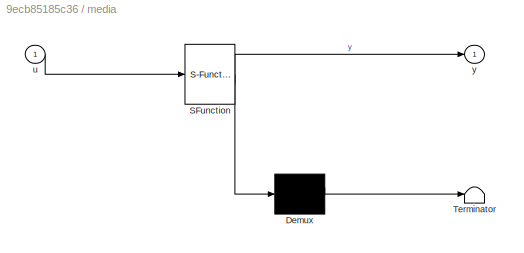
BLOCK [SubSystem] media
  ErrorFcn = Stateflow.Translate.translate
  LibrarySourceBlock = simulink/User-Defined\nFunctions/MATLAB Function
  PermitHierarchicalResolution = ExplicitOnly
  SFBlockType = MATLAB Function
  TreatAsAtomicUnit = on
BLOCK [Demux] media/ Demux 
  Outputs = 1
BLOCK [S-Function] media/ SFunction 
  EnableBusSupport = on
  FunctionName = sf_sfun
  PortCounts = [1 2]
  SFcnIsStateOwnerBlock = off
  SFunctionDeploymentMode = off
  Tag = Stateflow S-Function 2
BLOCK [Terminator] media/ Terminator 
BLOCK [Inport] media/u
BLOCK [Outport] media/y
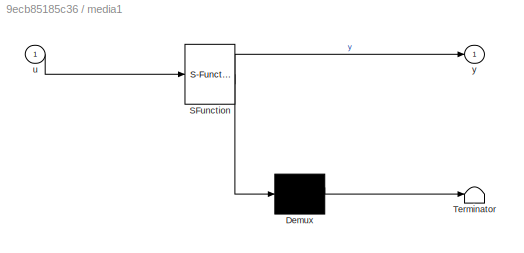
BLOCK [SubSystem] media1
  ErrorFcn = Stateflow.Translate.translate
  LibrarySourceBlock = simulink/User-Defined\nFunctions/MATLAB Function
  PermitHierarchicalResolution = ExplicitOnly
  SFBlockType = MATLAB Function
  TreatAsAtomicUnit = on
BLOCK [Demux] media1/ Demux 
  Outputs = 1
BLOCK [S-Function] media1/ SFunction 
  EnableBusSupport = on
  FunctionName = sf_sfun
  PortCounts = [1 2]
  SFcnIsStateOwnerBlock = off
  SFunctionDeploymentMode = off
  Tag = Stateflow S-Function 1
BLOCK [Terminator] media1/ Terminator 
BLOCK [Inport] media1/u
BLOCK [Outport] media1/y
BLOCK [SubSystem] media10
  ErrorFcn = Stateflow.Translate.translate
  LibrarySourceBlock = simulink/User-Defined\nFunctions/MATLAB Function
  PermitHierarchicalResolution = ExplicitOnly
  SFBlockType = MATLAB Function
  TreatAsAtomicUnit = on
BLOCK [Demux] media10/ Demux 
  Outputs = 1
BLOCK [S-Function] media10/ SFunction 
  EnableBusSupport = on
  FunctionName = sf_sfun
  PortCounts = [1 2]
  SFcnIsStateOwnerBlock = off
  SFunctionDeploymentMode = off
  Tag = Stateflow S-Function 11
BLOCK [Terminator] media10/ Terminator 
BLOCK [Inport] media10/u
BLOCK [Outport] media10/y
BLOCK [SubSystem] media11
  ErrorFcn = Stateflow.Translate.translate
  LibrarySourceBlock = simulink/User-Defined\nFunctions/MATLAB Function
  PermitHierarchicalResolution = ExplicitOnly
  SFBlockType = MATLAB Function
  TreatAsAtomicUnit = on
BLOCK [Demux] media11/ Demux 
  Outputs = 1
BLOCK [S-Function] media11/ SFunction 
  EnableBusSupport = on
  FunctionName = sf_sfun
  PortCounts = [1 2]
  SFcnIsStateOwnerBlock = off
  SFunctionDeploymentMode = off
  Tag = Stateflow S-Function 12
BLOCK [Terminator] media11/ Terminator 
BLOCK [Inport] media11/u
BLOCK [Outport] media11/y
BLOCK [SubSystem] media12
  ErrorFcn = Stateflow.Translate.translate
  LibrarySourceBlock = simulink/User-Defined\nFunctions/MATLAB Function
  PermitHierarchicalResolution = ExplicitOnly
  SFBlockType = MATLAB Function
  TreatAsAtomicUnit = on
BLOCK [Demux] media12/ Demux 
  Outputs = 1
BLOCK [S-Function] media12/ SFunction 
  EnableBusSupport = on
  FunctionName = sf_sfun
  PortCounts = [1 2]
  SFcnIsStateOwnerBlock = off
  SFunctionDeploymentMode = off
  Tag = Stateflow S-Function 13
BLOCK [Terminator] media12/ Terminator 
BLOCK [Inport] media12/u
BLOCK [Outport] media12/y
BLOCK [SubSystem] media13
  ErrorFcn = Stateflow.Translate.translate
  LibrarySourceBlock = simulink/User-Defined\nFunctions/MATLAB Function
  PermitHierarchicalResolution = ExplicitOnly
  SFBlockType = MATLAB Function
  TreatAsAtomicUnit = on
BLOCK [Demux] media13/ Demux 
  Outputs = 1
BLOCK [S-Function] media13/ SFunction 
  EnableBusSupport = on
  FunctionName = sf_sfun
  PortCounts = [1 2]
  SFcnIsStateOwnerBlock = off
  SFunctionDeploymentMode = off
  Tag = Stateflow S-Function 14
BLOCK [Terminator] media13/ Terminator 
BLOCK [Inport] media13/u
BLOCK [Outport] media13/y
BLOCK [SubSystem] media2
  ErrorFcn = Stateflow.Translate.translate
  LibrarySourceBlock = simulink/User-Defined\nFunctions/MATLAB Function
  PermitHierarchicalResolution = ExplicitOnly
  SFBlockType = MATLAB Function
  TreatAsAtomicUnit = on
BLOCK [Demux] media2/ Demux 
  Outputs = 1
BLOCK [S-Function] media2/ SFunction 
  EnableBusSupport = on
  FunctionName = sf_sfun
  PortCounts = [1 2]
  SFcnIsStateOwnerBlock = off
  SFunctionDeploymentMode = off
  Tag = Stateflow S-Function 3
BLOCK [Terminator] media2/ Terminator 
BLOCK [Inport] media2/u
BLOCK [Outport] media2/y
BLOCK [SubSystem] media3
  ErrorFcn = Stateflow.Translate.translate
  LibrarySourceBlock = simulink/User-Defined\nFunctions/MATLAB Function
  PermitHierarchicalResolution = ExplicitOnly
  SFBlockType = MATLAB Function
  TreatAsAtomicUnit = on
BLOCK [Demux] media3/ Demux 
  Outputs = 1
BLOCK [S-Function] media3/ SFunction 
  EnableBusSupport = on
  FunctionName = sf_sfun
  PortCounts = [1 2]
  SFcnIsStateOwnerBlock = off
  SFunctionDeploymentMode = off
  Tag = Stateflow S-Function 4
BLOCK [Terminator] media3/ Terminator 
BLOCK [Inport] media3/u
BLOCK [Outport] media3/y
BLOCK [SubSystem] media4
  ErrorFcn = Stateflow.Translate.translate
  LibrarySourceBlock = simulink/User-Defined\nFunctions/MATLAB Function
  PermitHierarchicalResolution = ExplicitOnly
  SFBlockType = MATLAB Function
  TreatAsAtomicUnit = on
BLOCK [Demux] media4/ Demux 
  Outputs = 1
BLOCK [S-Function] media4/ SFunction 
  EnableBusSupport = on
  FunctionName = sf_sfun
  PortCounts = [1 2]
  SFcnIsStateOwnerBlock = off
  SFunctionDeploymentMode = off
  Tag = Stateflow S-Function 5
BLOCK [Terminator] media4/ Terminator 
BLOCK [Inport] media4/u
BLOCK [Outport] media4/y
BLOCK [SubSystem] media5
  ErrorFcn = Stateflow.Translate.translate
  LibrarySourceBlock = simulink/User-Defined\nFunctions/MATLAB Function
  PermitHierarchicalResolution = ExplicitOnly
  SFBlockType = MATLAB Function
  TreatAsAtomicUnit = on
BLOCK [Demux] media5/ Demux 
  Outputs = 1
BLOCK [S-Function] media5/ SFunction 
  EnableBusSupport = on
  FunctionName = sf_sfun
  PortCounts = [1 2]
  SFcnIsStateOwnerBlock = off
  SFunctionDeploymentMode = off
  Tag = Stateflow S-Function 6
BLOCK [Terminator] media5/ Terminator 
BLOCK [Inport] media5/u
BLOCK [Outport] media5/y
BLOCK [SubSystem] media6
  ErrorFcn = Stateflow.Translate.translate
  LibrarySourceBlock = simulink/User-Defined\nFunctions/MATLAB Function
  PermitHierarchicalResolution = ExplicitOnly
  SFBlockType = MATLAB Function
  TreatAsAtomicUnit = on
BLOCK [Demux] media6/ Demux 
  Outputs = 1
BLOCK [S-Function] media6/ SFunction 
  EnableBusSupport = on
  FunctionName = sf_sfun
  PortCounts = [1 2]
  SFcnIsStateOwnerBlock = off
  SFunctionDeploymentMode = off
  Tag = Stateflow S-Function 7
BLOCK [Terminator] media6/ Terminator 
BLOCK [Inport] media6/u
BLOCK [Outport] media6/y
BLOCK [SubSystem] media7
  ErrorFcn = Stateflow.Translate.translate
  LibrarySourceBlock = simulink/User-Defined\nFunctions/MATLAB Function
  PermitHierarchicalResolution = ExplicitOnly
  SFBlockType = MATLAB Function
  TreatAsAtomicUnit = on
BLOCK [Demux] media7/ Demux 
  Outputs = 1
BLOCK [S-Function] media7/ SFunction 
  EnableBusSupport = on
  FunctionName = sf_sfun
  PortCounts = [1 2]
  SFcnIsStateOwnerBlock = off
  SFunctionDeploymentMode = off
  Tag = Stateflow S-Function 8
BLOCK [Terminator] media7/ Terminator 
BLOCK [Inport] media7/u
BLOCK [Outport] media7/y
BLOCK [SubSystem] media8
  ErrorFcn = Stateflow.Translate.translate
  LibrarySourceBlock = simulink/User-Defined\nFunctions/MATLAB Function
  PermitHierarchicalResolution = ExplicitOnly
  SFBlockType = MATLAB Function
  TreatAsAtomicUnit = on
BLOCK [Demux] media8/ Demux 
  Outputs = 1
BLOCK [S-Function] media8/ SFunction 
  EnableBusSupport = on
  FunctionName = sf_sfun
  PortCounts = [1 2]
  SFcnIsStateOwnerBlock = off
  SFunctionDeploymentMode = off
  Tag = Stateflow S-Function 9
BLOCK [Terminator] media8/ Terminator 
BLOCK [Inport] media8/u
BLOCK [Outport] media8/y
BLOCK [SubSystem] media9
  ErrorFcn = Stateflow.Translate.translate
  LibrarySourceBlock = simulink/User-Defined\nFunctions/MATLAB Function
  PermitHierarchicalResolution = ExplicitOnly
  SFBlockType = MATLAB Function
  TreatAsAtomicUnit = on
BLOCK [Demux] media9/ Demux 
  Outputs = 1
BLOCK [S-Function] media9/ SFunction 
  EnableBusSupport = on
  FunctionName = sf_sfun
  PortCounts = [1 2]
  SFcnIsStateOwnerBlock = off
  SFunctionDeploymentMode = off
  Tag = Stateflow S-Function 10
BLOCK [Terminator] media9/ Terminator 
BLOCK [Inport] media9/u
BLOCK [Outport] media9/y
ANNOTATION (root): 5G Cell
ANNOTATION (root): 5G Core
ANNOTATION (root): Blokchain
ANNOTATION (root): Cloud Milan
ANNOTATION (root): Cloud Rome
ANNOTATION (root): HOSPITAL
ANNOTATION (root): POP1
ANNOTATION (root): POP2
ANNOTATION (root): SMART FACTORY
ANNOTATION (root): Access Router
ANNOTATION (root): BLOCKCHAIN
ANNOTATION (root): Border Router
ANNOTATION (root): CONTROL ROOM
ANNOTATION (root): Core Network Room
ANNOTATION (root): Distribution Router
ANNOTATION (root): Firewall, IPS/IDS, Malware Detection&Protection
ANNOTATION (root): MASTER
ANNOTATION (root): ON PREMISES HUB
ANNOTATION (root): PICO SITE
ANNOTATION (root): WORKING CELL
ANNOTATION (root): Web App Firewalls
LINE 5G_Core_1 (198):1 -> TLC_conn9:3
LINE 5G_Core_1 (198):2 -> TLC_service9:3
LINE 5G_Core_1 (198):3 -> CYBER_fault9:3
LINE 5G_Core_1 (198):4 -> Demux:1
LINE 5G_PGW_SGW_1 (193):1 -> 5G_Pico_1 (192):1
NET 5G_PGW_SGW_1 (193):2 -> 5G_Pico_1 (192):2, Display:1
LINE 5G_PGW_SGW_1 (193):3 -> 5G_Pico_1 (192):3
NET 5G_Pico_1 (192):1 -> Antenna_RU_1 (191):1, Antenna_RU_2 (204):1
NET 5G_Pico_1 (192):2 -> Antenna_RU_1 (191):2, Antenna_RU_2 (204):2
NET 5G_Pico_1 (192):3 -> Antenna_RU_1 (191):3, Antenna_RU_2 (204):3
NET ANT_1 (248):1 -> Display6:1, Mobile_1 (147):1
LINE ANT_1 (248):2 -> Mobile_1 (147):2
NET ANT_1 (248):3 -> Display7:1, Mobile_1 (147):3
NET ASR9006_1 (9):1 -> Wire_1b (96):1, Wire_4b (13):1, Wire_8b (22):1
NET ASR9006_1 (9):2 -> Wire_1b (96):2, Wire_4b (13):2, Wire_8b (22):2
NET ASR9006_1 (9):3 -> Wire_1b (96):3, Wire_4b (13):3, Wire_8b (22):3
LINE ASR9006_1 (9):4 -> Goto10:1
NET ASR9006_2 (10):1 -> Wire_2b (97):1, Wire_3 (11):1, Wire_7 (19):1
NET ASR9006_2 (10):2 -> Wire_2b (97):2, Wire_3 (11):2, Wire_7 (19):2
NET ASR9006_2 (10):3 -> Wire_2b (97):3, Wire_3 (11):3, Wire_7 (19):3
LINE ASR9006_2 (10):4 -> Goto7:1
NET ASR903_1 (5):1 -> Wire_10b (31):1, Wire_4 (12):1, Wire_6 (17):1
NET ASR903_1 (5):2 -> Wire_10b (31):2, Wire_4 (12):2, Wire_6 (17):2
NET ASR903_1 (5):3 -> Wire_10b (31):3, Wire_4 (12):3, Wire_6 (17):3
LINE ASR903_1 (5):4 -> Goto12:1
NET ASR903_2 (6):1 -> Wire_3b (14):1, Wire_5 (15):1, Wire_9 (28):1
NET ASR903_2 (6):2 -> Wire_3b (14):2, Wire_5 (15):2, Wire_9 (28):2
NET ASR903_2 (6):3 -> Wire_3b (14):3, Wire_5 (15):3, Wire_9 (28):3
LINE ASR903_2 (6):4 -> Goto9:1
NET ASR920_1 (7):1 -> Wire_12 (38):1, Wire_14 (42):1, Wire_15 (44):1, Wire_6b (18):1
NET ASR920_1 (7):2 -> Wire_12 (38):2, Wire_14 (42):2, Wire_15 (44):2, Wire_6b (18):2
NET ASR920_1 (7):3 -> Wire_12 (38):3, Wire_14 (42):3, Wire_15 (44):3, Wire_6b (18):3
LINE ASR920_1 (7):4 -> Goto11:1
NET ASR920_2 (8):1 -> Wire_11b (37):1, Wire_17b (188):1, Wire_18 (190):1, Wire_5b (16):1
NET ASR920_2 (8):2 -> Wire_11b (37):2, Wire_17b (188):2, Wire_18 (190):2, Wire_5b (16):2
NET ASR920_2 (8):3 -> Wire_11b (37):3, Wire_17b (188):3, Wire_18 (190):3, Wire_5b (16):3
LINE ASR920_2 (8):4 -> Goto8:1
NET Alcatel_1 (26):1 -> 5G_Core_1 (198):1, Cloud_Roma (238):1, Wire_10 (30):1
NET Alcatel_1 (26):2 -> 5G_Core_1 (198):2, Cloud_Roma (238):2, Wire_10 (30):2
NET Alcatel_1 (26):3 -> 5G_Core_1 (198):3, Cloud_Roma (238):3, Wire_10 (30):3
LINE Alcatel_1 (26):4 -> Goto19:1
NET Alcatel_2 (27):1 -> Cloud_Milano (239):1, Wire_9b (29):1
NET Alcatel_2 (27):2 -> Cloud_Milano (239):2, Wire_9b (29):2
NET Alcatel_2 (27):3 -> Cloud_Milano (239):3, Wire_9b (29):3
LINE Alcatel_2 (27):4 -> Goto20:1
NET Alcatel_3 (83):1 -> Wire_16 (45):1, Wire_16a (50):1, Wire_17 (187):1
NET Alcatel_3 (83):2 -> Wire_16a (50):2, Wire_17 (187):2
NET Alcatel_3 (83):3 -> Wire_16a (50):3, Wire_17 (187):3
LINE Alcatel_3 (83):4 -> Goto26:1
NET Alcatel_4 (84):1 -> Wire_18b (189):1, Wire_19b (297):1
NET Alcatel_4 (84):2 -> Wire_18b (189):2, Wire_19b (297):2
NET Alcatel_4 (84):3 -> Wire_18b (189):3, Wire_19b (297):3
LINE Alcatel_4 (84):4 -> Goto27:1
NET Alcatel_5 (292):1 -> BlockChainServer (256):1, Wire_11 (36):1
NET Alcatel_5 (292):2 -> BlockChainServer (256):2, Wire_11 (36):2
NET Alcatel_5 (292):3 -> BlockChainServer (256):3, Wire_11 (36):3
LINE Alcatel_5 (292):4 -> Goto22:1
LINE Analytics_1 (195):1 -> WS:1
LINE Antenna_RU_1 (191):1 -> Robot_1 (203):1
NET Antenna_RU_1 (191):3 -> Display8:1, Robot_1 (203):3
LINE Antenna_RU_2 (204):1 -> Robot_2 (205):1
LINE Antenna_RU_2 (204):3 -> Robot_2 (205):3
LINE Autoclave (121):1 -> Pipe_Ward (127):1
LINE BIGP_1 (34):1 -> Wire_14b (43):1
LINE BIGP_1 (34):2 -> Wire_14b (43):2
LINE BIGP_1 (34):3 -> Wire_14b (43):3
LINE BLM_1500 (91):1 -> Wire_15a (49):1
LINE BLM_1500 (91):2 -> ROUTE_TIM_3 (22):1
NET BLM_1500 (91):3 -> Splitter_1 (54):2, Wire_15a (49):3
NET BLM_1500 (91):4 -> Goto5:1, Splitter_1 (54):3
NET BTS_1 (246):1 -> ANT_1 (248):1, Wire_16 (45):2
NET BTS_1 (246):2 -> ANT_1 (248):2, Wire_16 (45):3
LINE BTS_1 (246):3 -> ANT_1 (248):4
LINE BlockChainServer (256):1 -> TLC_conn10:1
LINE BlockChainServer (256):2 -> TLC_service12:1
LINE BlockChainServer (256):3 -> CYBER_fault12:1
LINE BlockChainServer (256):4 -> Demux4:1
LINE Building5:1 -> Building_4 (216):1
LINE Building_1 (53):2 -> Goto25:1
LINE Building_2 (201):2 -> Goto29:1
LINE Building_3 (215):2 -> Goto30:1
LINE Building_4 (216):2 -> Goto28:1
NET CELL_1 (271):1 -> Goto32:1, SAVE_18 (18):1
LINE CISIA_MASTER (0):1 -> Display18:1
LINE CISIA_MASTER (0):2 -> Display11:1
LINE CISIA_MASTER (0):3 -> Display20:1
LINE CISIA_MASTER (0):4 -> Display21:1
LINE CYBER_fault10:1 -> Alcatel_2 (27):3
LINE CYBER_fault11:1 -> Alcatel_3 (83):3
LINE CYBER_fault12:1 -> Alcatel_5 (292):3
LINE CYBER_fault13:1 -> ASR920_2 (8):3
LINE CYBER_fault14:1 -> Alcatel_4 (84):3
LINE CYBER_fault1:1 -> Nex_2 (4):3
LINE CYBER_fault2:1 -> Nex_1 (3):3
LINE CYBER_fault3:1 -> ASR9006_2 (10):3
LINE CYBER_fault4:1 -> ASR9006_1 (9):3
LINE CYBER_fault5:1 -> ASR903_1 (5):3
LINE CYBER_fault6:1 -> ASR903_2 (6):3
LINE CYBER_fault8:1 -> ASR920_1 (7):3
LINE CYBER_fault9:1 -> Alcatel_1 (26):3
LINE Cafeteria (181):1 -> Mux5:4
LINE Cloud_Milano (239):1 -> TLC_conn13:1
LINE Cloud_Milano (239):2 -> TLC_service10:1
LINE Cloud_Milano (239):3 -> CYBER_fault10:1
LINE Cloud_Roma (238):1 -> TLC_conn9:1
LINE Cloud_Roma (238):2 -> TLC_service9:1
LINE Cloud_Roma (238):3 -> CYBER_fault9:1
NET Constant5:1 -> Mux8:1, SAVE_7 (7):1
NET Constant:1 -> Max:3, media13:1
NET Cooling_Coil (125):1 -> Duct_1 (126):1, Duct_2 (168):1, Duct_3 (169):1, Duct_4 (170):1
LINE Data Type Conversion:1 -> L2S_1 (226):1
LINE Data_Room_1 (333):1 -> L2S_2 (250):5
LINE Demux4:1 -> Terminator5:1
LINE Demux:1 -> Terminator:1
LINE Doctor_Room (115):1 -> Mux5:1
LINE Drug_Store (186):1 -> Mux5:8
NET Duct_1 (126):1 -> Operating_1 (177):6, Operating_2 (178):6
LINE Duct_1 (126):2 -> Mux3:4
NET Duct_2 (168):1 -> Doctor_Room (115):2, Medical_3 (173):6, Medical_4 (174):6, Surgery (179):2, Waiting_Room (180):2
LINE Duct_2 (168):2 -> Mux3:2
NET Duct_3 (169):1 -> Cafeteria (181):2, Material_Room (182):2, Medical_1 (171):6, Medical_2 (172):6, Staff_Room (183):2, Visit_Room (184):2
LINE Duct_3 (169):2 -> Mux3:1
NET Duct_4 (170):1 -> Drug_Store (186):2, Equipment_Warehouse (185):2, Medical_5 (175):6, Medical_6 (176):6
LINE Duct_4 (170):2 -> Mux3:3
LINE Equipment_Warehouse (185):1 -> Mux5:9
LINE FG1500_1 (32):1 -> Wire_12b (39):1
LINE FG1500_1 (32):2 -> Wire_12b (39):2
LINE FG1500_1 (32):3 -> Wire_12b (39):3
LINE FG1500_1 (32):4 -> Goto4:1
LINE FG1500_1 (32):5 -> Goto16:1
LINE Fan (122):1 -> Heating_Coil (123):2
LINE From10:1 -> ASR9006_1 (9):4
LINE From11:1 -> ASR9006_2 (10):4
LINE From12:1 -> Nex_1 (3):5
NET From13:1 -> ASR920_1 (7):4, Room_10 (257):1
LINE From14:1 -> ASR9006_2 (10):5
LINE From15:1 -> Nex_2 (4):5
LINE From16:1 -> Mux12:4
LINE From17:1 -> Mux6:3
NET From18:1 -> Medical_1 (171):7, Medical_2 (172):7, Medical_3 (173):7, Medical_4 (174):7, Medical_5 (175):7, Medical_6 (176):7, Operating_1 (177):7, Operating_2 (178):7
LINE From19:1 -> Alcatel_3 (83):4
LINE From1:1 -> Mux12:2
LINE From20:1 -> Mux6:2
LINE From21:1 -> Mux9:1
LINE From22:1 -> Alcatel_3 (83):5
LINE From23:1 -> Mux10:3
LINE From24:1 -> Mux10:1
LINE From25:1 -> Mux10:2
LINE From26:1 -> Mux10:4
LINE From28:1 -> SAVE_1 (1):1
LINE From2:1 -> Mux2:11
LINE From31:1 -> Mux2:1
LINE From32:1 -> Mux13:1
LINE From33:1 -> Mux2:2
LINE From34:1 -> Mux2:3
LINE From35:1 -> Mux13:2
LINE From36:1 -> Mux2:4
LINE From37:1 -> Alcatel_4 (84):4
LINE From38:1 -> Alcatel_4 (84):5
NET From3:1 -> BIGP_1 (34):4, FG1500_1 (32):4, Room_11 (258):1
LINE From42:1 -> Mux2:5
LINE From43:1 -> MA5603 (95):4
LINE From46:1 -> Mux2:6
LINE From4:1 -> Mux9:3
LINE From52:1 -> Mux2:7
LINE From56:1 -> Mux2:8
LINE From57:1 -> Mux2:9
LINE From58:1 -> Mux2:10
LINE From59:1 -> Mux6:1
LINE From5:1 -> Mux12:3
LINE From60:1 -> Mux9:2
LINE From61:1 -> Mux9:4
LINE From66:1 -> Mux12:1
LINE From6:1 -> Nex_2 (4):4
LINE From7:1 -> Nex_1 (3):4
NET From8:1 -> BLM_1500 (91):4, ONU_3 (282):3, Room_12 (259):1
LINE From9:1 -> ASR9006_1 (9):5
NET Generator (116):1 -> Data_Room_1 (333):1, L2S_2 (250):4, Wire_MR_1 (118):1, Wire_MR_2 (136):1, Wire_MR_3 (137):1, Wire_MR_4 (138):1, Wire_MR_5 (139):1, Wire_MR_6 (140):1, Wire_OP_1 (161):1, Wire_OP_2 (162):1, Wire_OR_1 (163):1, Wire_OR_2 (164):1, Wire_OR_3 (165):1, Wire_S_1 (166):1, Wire_S_2 (167):1
LINE Heating_Coil (123):1 -> Humidifier (124):2
LINE Humidifier (124):1 -> Cooling_Coil (125):2
NET L2S_1 (226):1 -> Analytics_1 (195):1, LocalCloud (261):1, RESISTO_1 (196):1
NET L2S_1 (226):2 -> Analytics_1 (195):2, LocalCloud (261):2, RESISTO_1 (196):2
NET L2S_1 (226):3 -> Analytics_1 (195):3, LocalCloud (261):3, RESISTO_1 (196):3
NET L2S_2 (250):1 -> Display10:1, Display9:1, Medical_1 (171):1, Medical_2 (172):1, Medical_3 (173):1, Medical_4 (174):1, Medical_5 (175):1, Medical_6 (176):1, Operating_1 (177):1, Operating_2 (178):1
NET L2S_2 (250):2 -> Display19:1, Medical_1 (171):2, Medical_2 (172):2, Medical_3 (173):2, Medical_4 (174):2, Medical_5 (175):2, Medical_6 (176):2, Operating_1 (177):2, Operating_2 (178):2
NET L2S_2 (250):3 -> Medical_1 (171):3, Medical_2 (172):3, Medical_3 (173):3, Medical_4 (174):3, Medical_5 (175):3, Medical_6 (176):3, Operating_1 (177):3, Operating_2 (178):3
LINE LocalCloud (261):1 -> 5G_PGW_SGW_1 (193):1
LINE LocalCloud (261):2 -> 5G_PGW_SGW_1 (193):2
LINE LocalCloud (261):3 -> 5G_PGW_SGW_1 (193):3
NET MA5603 (95):1 -> L2S_2 (250):1, Wire_19 (296):1
LINE MA5603 (95):2 -> ROUTE_TIM_4 (23):1
NET MA5603 (95):3 -> L2S_2 (250):3, Wire_19 (296):3
LINE MA5603 (95):4 -> Goto24:1
LINE Material_Room (182):1 -> Mux5:5
LINE Max:1 -> media10:1
LINE Medical_1 (171):1 -> Mux7:1
LINE Medical_1 (171):2 -> Goto37:1
LINE Medical_1 (171):3 -> Goto36:1
LINE Medical_2 (172):1 -> Mux7:2
LINE Medical_3 (173):1 -> Mux7:3
LINE Medical_4 (174):1 -> Mux7:4
LINE Medical_5 (175):1 -> Mux7:5
LINE Medical_6 (176):1 -> Mux7:6
NET Mobile_1 (147):1 -> Goto21:1, SAVE_9 (9):1
LINE Mobile_1 (147):2 -> Goto34:1
LINE Mobile_1 (147):3 -> Goto33:1
LINE Mobile_1 (147):4 -> Goto35:1
NET Mux10:1 -> Display15:1, Max:1, media11:1
LINE Mux12:1 -> media12:1
LINE Mux13:1 -> media8:1
LINE Mux1:1 -> media1:1
NET Mux2:1 -> Display5:1, media6:1
LINE Mux3:1 -> media:1
LINE Mux4:1 -> media4:1
LINE Mux5:1 -> media2:1
NET Mux6:1 -> Display22:1, media7:1
LINE Mux7:1 -> media3:1
LINE Mux8:1 -> media5:1
NET Mux9:1 -> Display16:1, Max:2, media9:1
NET Nex_1 (3):1 -> R_Wire_1 (98):1, Wire_2 (2):1, Wire_8 (21):1
LINE Nex_1 (3):2 -> ROUTE_TIM_1 (20):1
NET Nex_1 (3):3 -> R_Wire_1 (98):3, Wire_2 (2):3, Wire_8 (21):3
LINE Nex_1 (3):4 -> Goto13:1
NET Nex_2 (4):1 -> R_Wire_1b (99):1, Wire_1 (1):1, Wire_7b (20):1
LINE Nex_2 (4):2 -> ROUTE_TIM_2 (21):1
NET Nex_2 (4):3 -> R_Wire_1b (99):3, Wire_1 (1):3, Wire_7b (20):3
LINE Nex_2 (4):4 -> Goto14:1
LINE ONU_3 (282):1 -> L2S_1 (226):2
LINE ONU_3 (282):2 -> L2S_1 (226):3
LINE ONU_3 (282):3 -> Data Type Conversion:1
LINE Operating_1 (177):1 -> Mux7:7
LINE Operating_2 (178):1 -> Mux7:8
LINE Oxygen_Duct_1 (263):1 -> Medical_1 (171):8
LINE Oxygen_Duct_2 (264):1 -> Medical_2 (172):8
LINE Oxygen_Duct_3 (265):1 -> Medical_3 (173):8
LINE Oxygen_Duct_4 (266):1 -> Medical_4 (174):8
LINE Oxygen_Duct_5 (267):1 -> Medical_5 (175):8
LINE Oxygen_Duct_6 (268):1 -> Medical_6 (176):8
LINE Oxygen_Duct_7 (269):1 -> Operating_1 (177):8
LINE Oxygen_Duct_8 (270):1 -> Operating_2 (178):8
NET Oxygen_Pump (251):1 -> Oxygen_Duct_1 (263):1, Oxygen_Duct_2 (264):1, Oxygen_Duct_3 (265):1, Oxygen_Duct_4 (266):1, Oxygen_Duct_5 (267):1, Oxygen_Duct_6 (268):1, Oxygen_Duct_7 (269):1, Oxygen_Duct_8 (270):1
LINE Pipe_1 (120):1 -> Autoclave (121):2
LINE Pipe_1 (120):2 -> Mux4:9
LINE Pipe_Medical1 (128):1 -> Medical_1 (171):5
LINE Pipe_Medical1 (128):2 -> Mux4:1
LINE Pipe_Medical2 (129):1 -> Medical_2 (172):5
LINE Pipe_Medical2 (129):2 -> Mux4:3
LINE Pipe_Medical3 (130):1 -> Medical_3 (173):5
LINE Pipe_Medical3 (130):2 -> Mux4:2
LINE Pipe_Medical4 (131):1 -> Medical_4 (174):5
LINE Pipe_Medical4 (131):2 -> Mux4:4
LINE Pipe_Medical5 (132):1 -> Medical_5 (175):5
LINE Pipe_Medical5 (132):2 -> Mux4:5
LINE Pipe_Medical6 (133):1 -> Medical_6 (176):5
LINE Pipe_Medical6 (133):2 -> Mux4:6
LINE Pipe_Oper1 (134):1 -> Operating_1 (177):5
LINE Pipe_Oper1 (134):2 -> Mux4:7
LINE Pipe_Oper2 (135):1 -> Operating_2 (178):5
LINE Pipe_Oper2 (135):2 -> Mux4:8
NET Pipe_Ward (127):1 -> Pipe_Medical1 (128):1, Pipe_Medical2 (129):1, Pipe_Medical3 (130):1, Pipe_Medical4 (131):1, Pipe_Medical5 (132):1, Pipe_Medical6 (133):1, Pipe_Oper1 (134):1, Pipe_Oper2 (135):1
LINE Pipe_Ward (127):2 -> Mux4:10
NET PowerGen_1 (46):1 -> Goto:1, Room_1 (51):1
NET PowerGen_10 (293):1 -> Antenna_RU_1 (191):4, Antenna_RU_2 (204):4, Goto23:1, Robot_1 (203):2, Robot_2 (205):2, Room_13 (262):1
NET PowerGen_2 (47):1 -> Goto1:1, Room_2 (52):1
NET PowerGen_3 (157):1 -> 5G_Core_1 (198):4, ASR903_1 (5):4, Alcatel_1 (26):4, Cloud_Roma (238):4, Room_3 (200):1, Room_8 (283):1
LINE PowerGen_4 (214):1 -> Goto6:1
NET PowerGen_5 (236):1 -> ASR903_2 (6):4, Alcatel_2 (27):4, Cloud_Milano (239):4, Room_5 (240):1, Room_7 (252):1
NET PowerGen_6 (245):1 -> Goto17:1, Room_6 (241):1
NET PowerGen_7 (260):1 -> 5G_PGW_SGW_1 (193):4, 5G_Pico_1 (192):4, Analytics_1 (195):4, Goto15:1, L2S_1 (226):4, LocalCloud (261):4, RESISTO_1 (196):4, Room_14 (284):1
NET PowerGen_8 (281):1 -> ASR920_2 (8):4, Alcatel_5 (292):4, BlockChainServer (256):4, Room_4 (237):1, Room_9 (255):1
LINE PowerGen_9 (294):1 -> ANT_1 (248):3
LINE RESISTO_1 (196):1 -> WS:2
LINE ROBOT_QoS:1 -> CELL_1 (271):1
LINE ROUTE_TIM_1 (20):1 -> R_Wire_1 (98):2
LINE ROUTE_TIM_1 (20):2 -> Wire_8 (21):2
LINE ROUTE_TIM_1 (20):3 -> Wire_2 (2):2
LINE ROUTE_TIM_2 (21):1 -> R_Wire_1b (99):2
LINE ROUTE_TIM_2 (21):2 -> Wire_1 (1):2
LINE ROUTE_TIM_2 (21):3 -> Wire_7b (20):2
LINE ROUTE_TIM_3 (22):1 -> Wire_15a (49):2
LINE ROUTE_TIM_3 (22):2 -> Splitter_1 (54):1
LINE ROUTE_TIM_4 (23):1 -> Wire_19 (296):2
LINE ROUTE_TIM_4 (23):2 -> L2S_2 (250):2
LINE R_Wire_1 (98):1 -> TLC_conn1:1
LINE R_Wire_1 (98):2 -> TLC_service1:1
LINE R_Wire_1 (98):3 -> CYBER_fault1:1
LINE R_Wire_1 (98):4 -> R_Wire_1b (99):4
LINE R_Wire_1b (99):1 -> TLC_conn2:1
LINE R_Wire_1b (99):2 -> TLC_service2:1
LINE R_Wire_1b (99):3 -> CYBER_fault2:1
LINE R_Wire_1b (99):4 -> R_Wire_1 (98):4
LINE Robot_1 (203):1 -> ROBOT_QoS:1
LINE Robot_1 (203):2 -> Goto39:1
LINE Robot_1 (203):3 -> Goto38:1
LINE Robot_2 (205):1 -> ROBOT_QoS:2
LINE Robot_2 (205):2 -> Goto41:1
LINE Robot_2 (205):3 -> Goto40:1
NET Room_1 (51):1 -> Building_2 (201):1, Goto2:1
LINE Room_10 (257):1 -> ASR920_1 (7):5
NET Room_11 (258):1 -> BIGP_1 (34):5, FG1500_1 (32):5
LINE Room_12 (259):1 -> BLM_1500 (91):5
LINE Room_13 (262):1 -> 5G_Pico_1 (192):5
NET Room_14 (284):1 -> 5G_PGW_SGW_1 (193):5, L2S_1 (226):5, LocalCloud (261):5
NET Room_2 (52):1 -> Building_1 (53):1, Goto3:1
NET Room_3 (200):1 -> 5G_Core_1 (198):5, Alcatel_1 (26):5, Cloud_Roma (238):5, Room_Qos12:2
LINE Room_4 (237):1 -> ASR920_2 (8):5
NET Room_5 (240):1 -> Alcatel_2 (27):5, Building5:2, Cloud_Milano (239):5
LINE Room_6 (241):1 -> Goto18:1
NET Room_7 (252):1 -> ASR903_2 (6):5, Building5:1
NET Room_8 (283):1 -> ASR903_1 (5):5, Room_Qos12:1
NET Room_9 (255):1 -> Alcatel_5 (292):5, BlockChainServer (256):5
LINE Room_Qos12:1 -> Building_3 (215):1
LINE Splitter_1 (54):1 -> ONU_3 (282):1
LINE Splitter_1 (54):2 -> ONU_3 (282):2
LINE Splitter_1 (54):3 -> ONU_3 (282):4
LINE Splitter_1 (54):4 -> BLM_1500 (91):6
LINE Staff_Room (183):1 -> Mux5:6
LINE Subsystem12/1:1 -> Subsystem12/Mux:1
LINE Subsystem12/2:1 -> Subsystem12/Mux:2
LINE Subsystem12/Mean:1 -> Subsystem12/MEAN:1
LINE Subsystem12/Mux:1 -> Subsystem12/Mean:1
NET Subsystem12:1 -> Mux8:2, SAVE_4 (4):1
LINE Surgery (179):1 -> Mux5:2
LINE TLC_conn10:1 -> Alcatel_5 (292):1
LINE TLC_conn11:1 -> ASR920_2 (8):1
LINE TLC_conn13:1 -> Alcatel_2 (27):1
LINE TLC_conn14:1 -> Alcatel_3 (83):1
LINE TLC_conn15:1 -> Alcatel_4 (84):1
LINE TLC_conn1:1 -> Nex_2 (4):1
LINE TLC_conn2:1 -> Nex_1 (3):1
LINE TLC_conn3:1 -> ASR9006_2 (10):1
LINE TLC_conn4:1 -> ASR9006_1 (9):1
LINE TLC_conn5:1 -> ASR903_1 (5):1
LINE TLC_conn6:1 -> ASR903_2 (6):1
LINE TLC_conn8:1 -> ASR920_1 (7):1
LINE TLC_conn9:1 -> Alcatel_1 (26):1
LINE TLC_service10:1 -> Alcatel_2 (27):2
LINE TLC_service11:1 -> Alcatel_3 (83):2
LINE TLC_service12:1 -> Alcatel_5 (292):2
LINE TLC_service13:1 -> ASR920_2 (8):2
LINE TLC_service14:1 -> Alcatel_4 (84):2
LINE TLC_service1:1 -> Nex_2 (4):2
LINE TLC_service2:1 -> Nex_1 (3):2
LINE TLC_service3:1 -> ASR9006_2 (10):2
LINE TLC_service4:1 -> ASR9006_1 (9):2
LINE TLC_service5:1 -> ASR903_1 (5):2
LINE TLC_service6:1 -> ASR903_2 (6):2
LINE TLC_service8:1 -> ASR920_1 (7):2
LINE TLC_service9:1 -> Alcatel_1 (26):2
LINE Tap (119):1 -> Pipe_1 (120):1
LINE Visit_Room (184):1 -> Mux5:7
LINE WS:1 -> SAVE_19 (19):1
LINE Waiting_Room (180):1 -> Mux5:3
LINE Wire_1 (1):1 -> TLC_conn4:2
LINE Wire_1 (1):2 -> TLC_service4:2
LINE Wire_1 (1):3 -> CYBER_fault4:2
LINE Wire_1 (1):4 -> Wire_1b (96):4
LINE Wire_10 (30):1 -> TLC_conn5:2
LINE Wire_10 (30):2 -> TLC_service5:2
LINE Wire_10 (30):3 -> CYBER_fault5:2
LINE Wire_10 (30):4 -> Wire_10b (31):4
LINE Wire_10b (31):1 -> TLC_conn9:2
LINE Wire_10b (31):2 -> TLC_service9:2
LINE Wire_10b (31):3 -> CYBER_fault9:2
LINE Wire_10b (31):4 -> Wire_10 (30):4
LINE Wire_11 (36):1 -> TLC_conn11:2
LINE Wire_11 (36):2 -> TLC_service13:2
LINE Wire_11 (36):3 -> CYBER_fault13:2
LINE Wire_11 (36):4 -> Wire_11b (37):4
LINE Wire_11b (37):1 -> TLC_conn10:2
LINE Wire_11b (37):2 -> TLC_service12:2
LINE Wire_11b (37):3 -> CYBER_fault12:2
LINE Wire_11b (37):4 -> Wire_11 (36):4
LINE Wire_12 (38):1 -> FG1500_1 (32):1
LINE Wire_12 (38):2 -> FG1500_1 (32):2
LINE Wire_12 (38):3 -> FG1500_1 (32):3
LINE Wire_12 (38):4 -> Wire_12b (39):4
LINE Wire_12b (39):1 -> TLC_conn8:2
LINE Wire_12b (39):2 -> TLC_service8:2
LINE Wire_12b (39):3 -> CYBER_fault8:2
LINE Wire_12b (39):4 -> Wire_12 (38):4
LINE Wire_14 (42):1 -> BIGP_1 (34):1
LINE Wire_14 (42):2 -> BIGP_1 (34):2
LINE Wire_14 (42):3 -> BIGP_1 (34):3
LINE Wire_14 (42):4 -> Wire_14b (43):4
LINE Wire_14b (43):1 -> TLC_conn8:3
LINE Wire_14b (43):2 -> TLC_service8:3
LINE Wire_14b (43):3 -> CYBER_fault8:3
LINE Wire_14b (43):4 -> Wire_14 (42):4
LINE Wire_15 (44):1 -> BLM_1500 (91):1
LINE Wire_15 (44):2 -> BLM_1500 (91):2
LINE Wire_15 (44):3 -> BLM_1500 (91):3
LINE Wire_15 (44):4 -> Wire_15a (49):4
LINE Wire_15a (49):1 -> TLC_conn8:4
LINE Wire_15a (49):2 -> TLC_service8:4
LINE Wire_15a (49):3 -> CYBER_fault8:4
LINE Wire_15a (49):4 -> Wire_15 (44):4
LINE Wire_16 (45):1 -> TLC_conn14:2
LINE Wire_16 (45):2 -> TLC_service11:2
LINE Wire_16 (45):3 -> CYBER_fault11:2
LINE Wire_16 (45):4 -> Wire_16a (50):4
LINE Wire_16a (50):1 -> BTS_1 (246):1
LINE Wire_16a (50):2 -> BTS_1 (246):2
LINE Wire_16a (50):3 -> BTS_1 (246):3
LINE Wire_16a (50):4 -> Wire_16 (45):4
LINE Wire_17 (187):1 -> TLC_conn11:4
LINE Wire_17 (187):2 -> TLC_service13:4
LINE Wire_17 (187):3 -> CYBER_fault13:4
LINE Wire_17 (187):4 -> Wire_17b (188):4
LINE Wire_17b (188):1 -> TLC_conn14:1
LINE Wire_17b (188):2 -> TLC_service11:1
LINE Wire_17b (188):3 -> CYBER_fault11:1
LINE Wire_17b (188):4 -> Wire_17 (187):4
LINE Wire_18 (190):1 -> TLC_conn15:1
LINE Wire_18 (190):2 -> TLC_service14:1
LINE Wire_18 (190):3 -> CYBER_fault14:1
LINE Wire_18 (190):4 -> Wire_18b (189):4
LINE Wire_18b (189):1 -> TLC_conn11:3
LINE Wire_18b (189):2 -> TLC_service13:3
LINE Wire_18b (189):3 -> CYBER_fault13:3
LINE Wire_18b (189):4 -> Wire_18 (190):4
LINE Wire_19 (296):1 -> TLC_conn15:2
LINE Wire_19 (296):2 -> TLC_service14:2
LINE Wire_19 (296):3 -> CYBER_fault14:2
LINE Wire_19 (296):4 -> Wire_19b (297):4
LINE Wire_19b (297):1 -> MA5603 (95):1
LINE Wire_19b (297):2 -> MA5603 (95):2
LINE Wire_19b (297):3 -> MA5603 (95):3
LINE Wire_19b (297):4 -> Wire_19 (296):4
LINE Wire_1b (96):1 -> TLC_conn1:2
LINE Wire_1b (96):2 -> TLC_service1:2
LINE Wire_1b (96):3 -> CYBER_fault1:2
LINE Wire_1b (96):4 -> Wire_1 (1):4
LINE Wire_2 (2):1 -> TLC_conn3:2
LINE Wire_2 (2):2 -> TLC_service3:2
LINE Wire_2 (2):3 -> CYBER_fault3:2
LINE Wire_2 (2):4 -> Wire_2b (97):4
LINE Wire_2b (97):1 -> TLC_conn2:2
LINE Wire_2b (97):2 -> TLC_service2:2
LINE Wire_2b (97):3 -> CYBER_fault2:2
LINE Wire_2b (97):4 -> Wire_2 (2):4
LINE Wire_3 (11):1 -> TLC_conn6:1
LINE Wire_3 (11):2 -> TLC_service6:1
LINE Wire_3 (11):3 -> CYBER_fault6:1
LINE Wire_3 (11):4 -> Wire_3b (14):4
LINE Wire_3b (14):1 -> TLC_conn3:3
LINE Wire_3b (14):2 -> TLC_service3:3
LINE Wire_3b (14):3 -> CYBER_fault3:3
LINE Wire_3b (14):4 -> Wire_3 (11):4
LINE Wire_4 (12):1 -> TLC_conn4:3
LINE Wire_4 (12):2 -> TLC_service4:3
LINE Wire_4 (12):3 -> CYBER_fault4:3
LINE Wire_4 (12):4 -> Wire_4b (13):4
LINE Wire_4b (13):1 -> TLC_conn5:1
LINE Wire_4b (13):2 -> TLC_service5:1
LINE Wire_4b (13):3 -> CYBER_fault5:1
LINE Wire_4b (13):4 -> Wire_4 (12):4
LINE Wire_5 (15):1 -> TLC_conn11:1
LINE Wire_5 (15):2 -> TLC_service13:1
LINE Wire_5 (15):3 -> CYBER_fault13:1
LINE Wire_5 (15):4 -> Wire_5b (16):4
LINE Wire_5b (16):1 -> TLC_conn6:3
LINE Wire_5b (16):2 -> TLC_service6:2
LINE Wire_5b (16):3 -> CYBER_fault6:2
LINE Wire_5b (16):4 -> Wire_5 (15):4
LINE Wire_6 (17):1 -> TLC_conn8:1
LINE Wire_6 (17):2 -> TLC_service8:1
LINE Wire_6 (17):3 -> CYBER_fault8:1
LINE Wire_6 (17):4 -> Wire_6b (18):4
LINE Wire_6b (18):1 -> TLC_conn5:3
LINE Wire_6b (18):2 -> TLC_service5:3
LINE Wire_6b (18):3 -> CYBER_fault5:3
LINE Wire_6b (18):4 -> Wire_6 (17):4
LINE Wire_7 (19):1 -> TLC_conn1:3
LINE Wire_7 (19):2 -> TLC_service1:3
LINE Wire_7 (19):3 -> CYBER_fault1:3
LINE Wire_7 (19):4 -> Wire_7b (20):4
LINE Wire_7b (20):1 -> TLC_conn3:1
LINE Wire_7b (20):2 -> TLC_service3:1
LINE Wire_7b (20):3 -> CYBER_fault3:1
LINE Wire_7b (20):4 -> Wire_7 (19):4
LINE Wire_8 (21):1 -> TLC_conn4:1
LINE Wire_8 (21):2 -> TLC_service4:1
LINE Wire_8 (21):3 -> CYBER_fault4:1
LINE Wire_8 (21):4 -> Wire_8b (22):4
LINE Wire_8b (22):1 -> TLC_conn2:3
LINE Wire_8b (22):2 -> TLC_service2:3
LINE Wire_8b (22):3 -> CYBER_fault2:3
LINE Wire_8b (22):4 -> Wire_8 (21):4
LINE Wire_9 (28):1 -> TLC_conn13:2
LINE Wire_9 (28):2 -> TLC_service10:2
LINE Wire_9 (28):3 -> CYBER_fault10:2
LINE Wire_9 (28):4 -> Wire_9b (29):4
LINE Wire_9b (29):1 -> TLC_conn6:2
LINE Wire_9b (29):2 -> TLC_service6:3
LINE Wire_9b (29):3 -> CYBER_fault6:3
LINE Wire_9b (29):4 -> Wire_9 (28):4
LINE Wire_MR_1 (118):1 -> Medical_1 (171):4
LINE Wire_MR_1 (118):2 -> Mux1:12
LINE Wire_MR_2 (136):1 -> Medical_2 (172):4
LINE Wire_MR_2 (136):2 -> Mux1:11
LINE Wire_MR_3 (137):1 -> Medical_3 (173):4
LINE Wire_MR_3 (137):2 -> Mux1:10
LINE Wire_MR_4 (138):1 -> Medical_4 (174):4
LINE Wire_MR_4 (138):2 -> Mux1:5
LINE Wire_MR_5 (139):1 -> Medical_5 (175):4
LINE Wire_MR_5 (139):2 -> Mux1:4
LINE Wire_MR_6 (140):1 -> Medical_6 (176):4
LINE Wire_MR_6 (140):2 -> Mux1:6
LINE Wire_OP_1 (161):1 -> Operating_1 (177):4
LINE Wire_OP_1 (161):2 -> Mux1:8
LINE Wire_OP_2 (162):1 -> Operating_2 (178):4
LINE Wire_OP_2 (162):2 -> Mux1:7
NET Wire_OR_1 (163):1 -> Doctor_Room (115):1, Surgery (179):1, Waiting_Room (180):1
LINE Wire_OR_1 (163):2 -> Mux1:9
NET Wire_OR_2 (164):1 -> Cafeteria (181):1, Material_Room (182):1, Staff_Room (183):1, Visit_Room (184):1
LINE Wire_OR_2 (164):2 -> Mux1:3
NET Wire_OR_3 (165):1 -> Drug_Store (186):1, Equipment_Warehouse (185):1
LINE Wire_OR_3 (165):2 -> Mux1:2
NET Wire_S_1 (166):1 -> Cooling_Coil (125):1, Fan (122):1, Heating_Coil (123):1, Humidifier (124):1, Oxygen_Pump (251):1
LINE Wire_S_1 (166):2 -> Mux1:1
LINE Wire_S_2 (167):1 -> Autoclave (121):1
LINE Wire_S_2 (167):2 -> Mux1:13
LINE media10:1 -> SAVE_22 (22):1
LINE media11:1 -> SAVE_20 (20):1
LINE media12:1 -> SAVE_3 (3):1
LINE media13:1 -> SAVE_23 (23):1
LINE media1:1 -> SAVE_17 (17):1
LINE media2:1 -> SAVE_14 (14):1
NET media3:1 -> Goto31:1, SAVE_15 (15):1
LINE media4:1 -> SAVE_13 (13):1
LINE media5:1 -> SAVE_8 (8):1
NET media6:1 -> SAVE_5 (5):1, Subsystem12:2
NET media7:1 -> Mux8:3, SAVE_2 (2):1
NET media8:1 -> SAVE_6 (6):1, Subsystem12:1
LINE media9:1 -> SAVE_21 (21):1
LINE media:1 -> SAVE_16 (16):1
note: NET lines group one-source signal fan-out (src -> all destinations, sorted); 1:1 wires keep LINE
CHART media states=1 transitions=1
  STATE_LABEL 'eML_blk_kernel()'
  STATE_LABEL 'SCRIPT:\nfunction y = media(u)\n\ny = mean(u);\n'
CHART media2 states=1 transitions=1
  STATE_LABEL 'eML_blk_kernel()'
  STATE_LABEL 'SCRIPT:\nfunction y = media(u)\n\ny = mean(u);\n'
CHART media3 states=1 transitions=1
  STATE_LABEL 'eML_blk_kernel()'
  STATE_LABEL 'SCRIPT:\nfunction y = media(u)\n\ny = mean(u);\n'
CHART media4 states=1 transitions=1
  STATE_LABEL 'eML_blk_kernel()'
  STATE_LABEL 'SCRIPT:\nfunction y = media(u)\n\ny = mean(u);\n'
CHART media5 states=1 transitions=1
  STATE_LABEL 'eML_blk_kernel()'
  STATE_LABEL 'SCRIPT:\nfunction y = media(u)\n\ny = mean(u);\n'
CHART media6 states=1 transitions=1
  STATE_LABEL 'eML_blk_kernel()'
  STATE_LABEL 'SCRIPT:\nfunction y = media(u)\n\ny = mean(u);\n'
CHART media7 states=1 transitions=1
  STATE_LABEL 'eML_blk_kernel()'
  STATE_LABEL 'SCRIPT:\nfunction y = media(u)\n\ny = mean(u);\n'
CHART media8 states=1 transitions=1
  STATE_LABEL 'eML_blk_kernel()'
  STATE_LABEL 'SCRIPT:\nfunction y = media(u)\n\ny = mean(u);\n'
CHART media1 states=1 transitions=1
  STATE_LABEL 'eML_blk_kernel()'
  STATE_LABEL 'SCRIPT:\nfunction y = media(u)\n\ny = mean(u);\n'
CHART media9 states=1 transitions=1
  STATE_LABEL 'eML_blk_kernel()'
  STATE_LABEL 'SCRIPT:\nfunction y = media(u)\n\ny = mean(u);\n'
CHART media10 states=1 transitions=1
  STATE_LABEL 'eML_blk_kernel()'
  STATE_LABEL 'SCRIPT:\nfunction y = media(u)\n\ny = mean(u);\n'
CHART media11 states=1 transitions=1
  STATE_LABEL 'eML_blk_kernel()'
  STATE_LABEL 'SCRIPT:\nfunction y = media(u)\n\ny = mean(u);\n'
CHART media12 states=1 transitions=1
  STATE_LABEL 'eML_blk_kernel()'
  STATE_LABEL 'SCRIPT:\nfunction y = media(u)\n\ny = mean(u);\n'
CHART media13 states=1 transitions=1
  STATE_LABEL 'eML_blk_kernel()'
  STATE_LABEL 'SCRIPT:\nfunction y = media(u)\n\ny = mean(u);\n'
CHART  states=0 transitions=0
CHART  states=0 transitions=0
CHART  states=0 transitions=0
CHART  states=0 transitions=0
CHART  states=0 transitions=0
CHART  states=0 transitions=0
CHART  states=0 transitions=0
CHART  states=0 transitions=0
CHART  states=0 transitions=0
CHART  states=0 transitions=0
CHART  states=0 transitions=0
CHART  states=0 transitions=0
CHART  states=0 transitions=0
CHART  states=0 transitions=0
